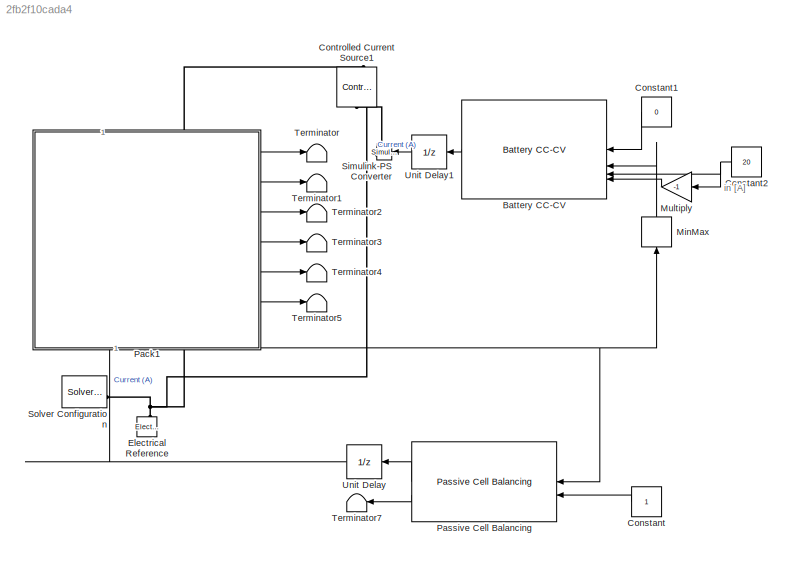
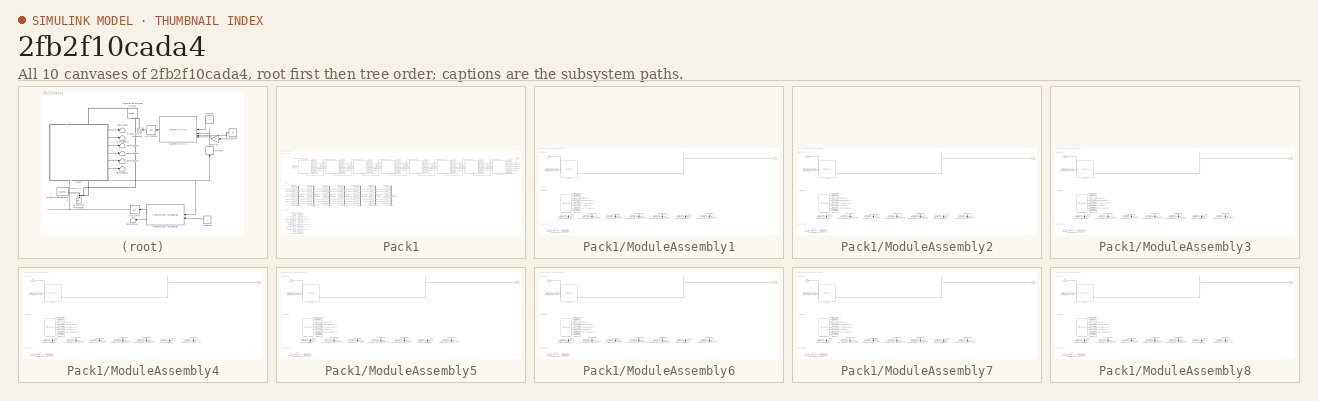
[diagram: thumbnail index - all 10 canvases of the model, root first then tree order]
MODEL slx_2fb2f10cada4
KIND model
CONFIG AbsTol = auto
CONFIG EnableMultiTasking = off
CONFIG FixedStep = auto
CONFIG MaxStep = auto
CONFIG MinStep = auto
CONFIG RelTol = 1e-3
CONFIG SampleTimeConstraint = Unconstrained
CONFIG SolverName = VariableStepAuto
CONFIG StartTime = 0.0
CONFIG StopTime = 3600
BLOCK [Reference] Battery CC-CV  REF=BatteryCurrentManagement/Battery CC-CV
  LibrarySourceBlock = batt_sl_lib/Current Management/Battery CC-CV
  NameLocation = top
  SourceBlock = BatteryCurrentManagement/Battery CC-CV
  SourceType = Battery CC-CV
BLOCK [Constant] Constant
  NameLocation = top
BLOCK [Constant] Constant1
  NameLocation = top
  Value = 0
BLOCK [Constant] Constant2
  NameLocation = top
  Value = 20
BLOCK [Reference] Controlled Current Source1  REF=fl_lib/Electrical/Electrical Sources/Controlled Current
Source
  NameLocation = right
  SourceBlock = fl_lib/Electrical/Electrical Sources/Controlled Current\nSource
  SourceType = Controlled Current\nSource
BLOCK [Reference] Electrical Reference  REF=fl_lib/Electrical/Electrical Elements/Electrical Reference
  NameLocation = right
  SourceBlock = fl_lib/Electrical/Electrical Elements/Electrical Reference
  SourceType = Electrical Reference
BLOCK [MinMax] MinMax
  Function = max
  NameLocation = right
BLOCK [Gain] Multiply
  Gain = -1
  NameLocation = top
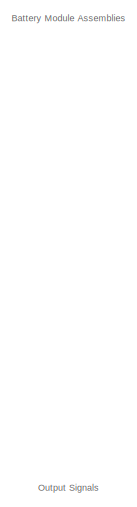
[diagram: Pack1 - part 1/7, top left region]
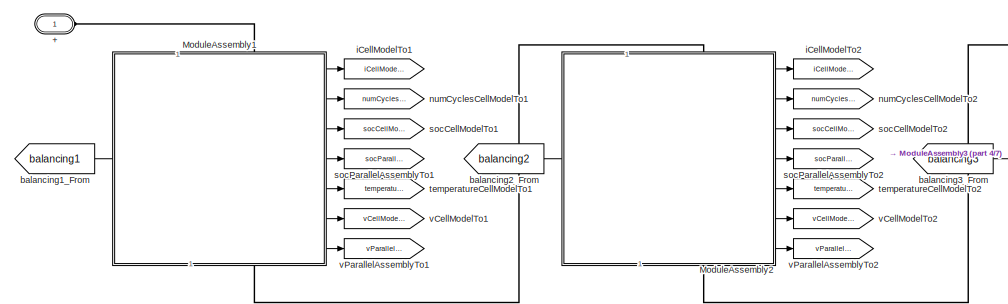
[diagram: Pack1 - part 2/7, top left region]
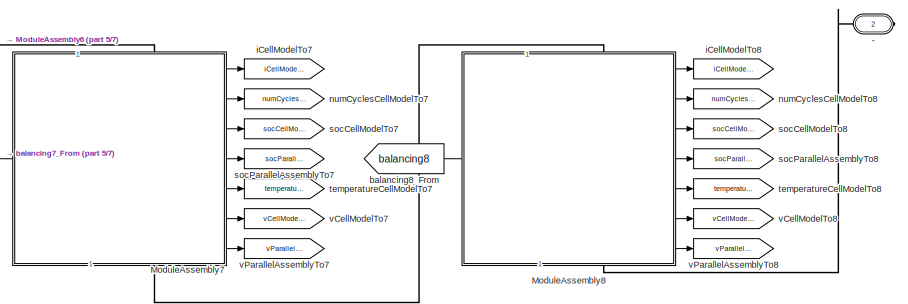
[diagram: Pack1 - part 3/7, top right region]
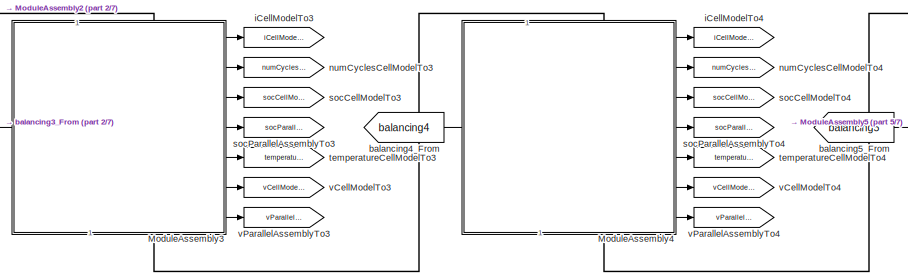
[diagram: Pack1 - part 4/7, top center region]
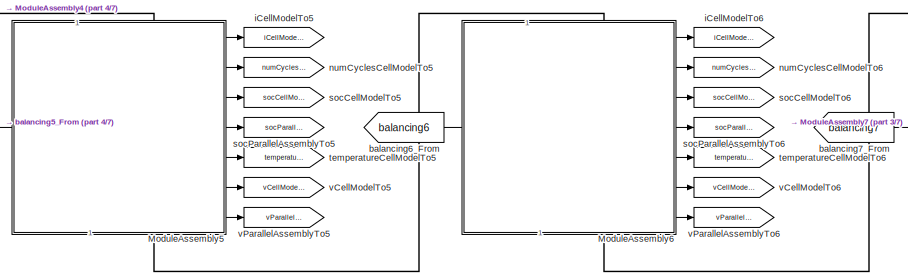
[diagram: Pack1 - part 5/7, top center region]
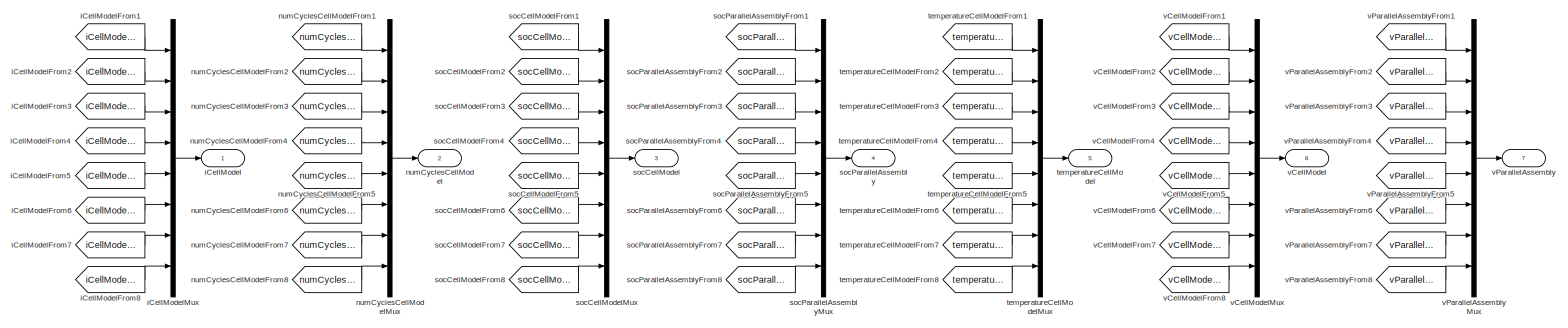
[diagram: Pack1 - part 6/7, middle left region]
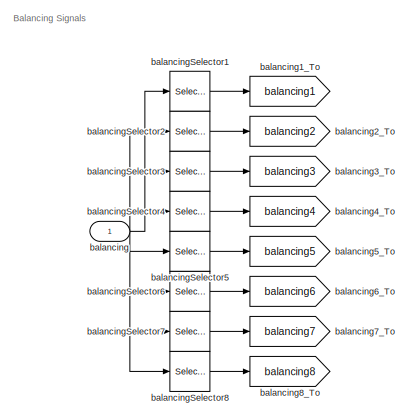
[diagram: Pack1 - part 7/7, bottom left region]
BLOCK [SubSystem] Pack1
  CopyFcn = battery_builder_rtmsupport('copyfcn',gcbh);
  LoadFcn = battery_builder_rtmsupport('loadfcn',gcbh);
  PortSchema = {"entries":[{"content":{"sides":[{"content":{"connectorIds":["LConn1"]},"type":"ConnectorPlacement.EquallySpacedRectSide","uuid":"15f36c34-930d-4f52-9483-b00906672ad1"},{"content":{"connectorIds":["RConn1"],"side":"RIGHT"},"type":"ConnectorPlacement.EquallySpacedRectSide","uuid":"ac97c2df-2435-440c-95b5-222ce8189245"},{"content":{"connectorIds":["In1"],"side":"TOP"},"type":"ConnectorPlacement.Equa...<+442ch>  <repeated x9 — deduplicated; at blocks: Pack1, ModuleAssembly1, ModuleAssembly2, ModuleAssembly3, ModuleAssembly4, ModuleAssembly5, ModuleAssembly6, ModuleAssembly7, ModuleAssembly8>
  PreCopyFcn = battery_builder_rtmsupport('precopyfcn',gcbh);
  PreDeleteFcn = battery_builder_rtmsupport('predeletefcn',gcbh);
BLOCK [PMIOPort] Pack1/+
  Side = Left
BLOCK [PMIOPort] Pack1/-
  Port = 2
  Side = Right
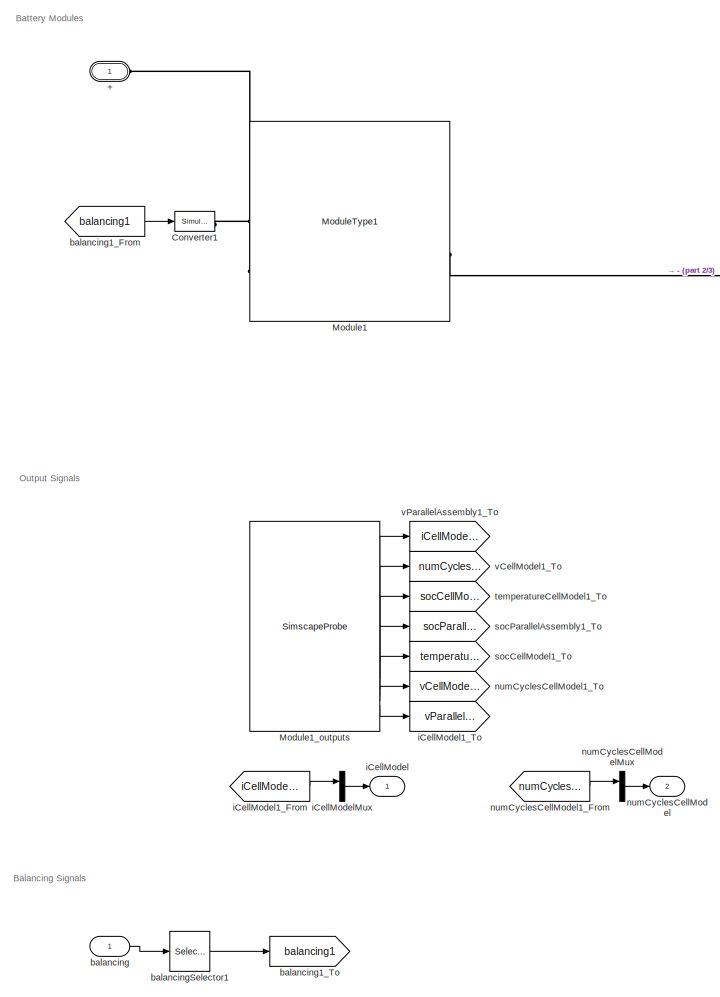
[diagram: Pack1/ModuleAssembly1 - part 1/3, left side, full height]
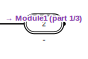
[diagram: Pack1/ModuleAssembly1 - part 2/3, top right region]
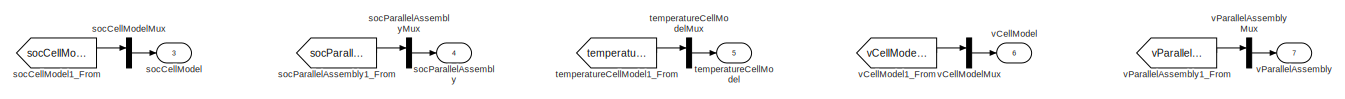
[diagram: Pack1/ModuleAssembly1 - part 3/3, bottom center region]
BLOCK [SubSystem] Pack1/ModuleAssembly1
  CopyFcn = battery_builder_rtmsupport('copyfcn',gcbh);
  LoadFcn = battery_builder_rtmsupport('loadfcn',gcbh);
  PreCopyFcn = battery_builder_rtmsupport('precopyfcn',gcbh);
  PreDeleteFcn = battery_builder_rtmsupport('predeletefcn',gcbh);
BLOCK [PMIOPort] Pack1/ModuleAssembly1/+
  Side = Left
BLOCK [PMIOPort] Pack1/ModuleAssembly1/-
  Port = 2
  Side = Right
BLOCK [Reference] Pack1/ModuleAssembly1/Converter1  REF=nesl_utility/Simulink-PS
Converter
  SourceBlock = nesl_utility/Simulink-PS\nConverter
  SourceType = Simulink-PS\nConverter
BLOCK [Reference] Pack1/ModuleAssembly1/Module1  REF=GD_Batterymodel_lib/Modules/ModuleType1
  SourceBlock = GD_Batterymodel_lib/Modules/ModuleType1
  SourceType = ModuleType1
BLOCK [SimscapeProbe] Pack1/ModuleAssembly1/Module1_outputs
  BoundBlock = 522
  Variables = {iCellModel, numCyclesCellModel, socCellModel, socParallelAssembly, temperatureCellModel, vCellModel, vParallelAssembly}
BLOCK [Inport] Pack1/ModuleAssembly1/balancing
  PortDimensions = 14
BLOCK [From] Pack1/ModuleAssembly1/balancing1_From
  GotoTag = balancing1
BLOCK [Goto] Pack1/ModuleAssembly1/balancing1_To
  GotoTag = balancing1
BLOCK [Selector] Pack1/ModuleAssembly1/balancingSelector1
  IndexOptions = Index vector (dialog)
  Indices = [1   2   3   4   5   6   7   8   9  10  11  12  13  14]
  InputPortWidth = 14
  OutputSizes = 1
BLOCK [Outport] Pack1/ModuleAssembly1/iCellModel
BLOCK [From] Pack1/ModuleAssembly1/iCellModel1_From
  GotoTag = iCellModel1
BLOCK [Goto] Pack1/ModuleAssembly1/iCellModel1_To
  GotoTag = vParallelAssembly1
BLOCK [Mux] Pack1/ModuleAssembly1/iCellModelMux
  DisplayOption = bar
  Inputs = 1
BLOCK [Outport] Pack1/ModuleAssembly1/numCyclesCellModel
  Port = 2
BLOCK [From] Pack1/ModuleAssembly1/numCyclesCellModel1_From
  GotoTag = numCyclesCellModel1
BLOCK [Goto] Pack1/ModuleAssembly1/numCyclesCellModel1_To
  GotoTag = vCellModel1
BLOCK [Mux] Pack1/ModuleAssembly1/numCyclesCellModelMux
  DisplayOption = bar
  Inputs = 1
BLOCK [Outport] Pack1/ModuleAssembly1/socCellModel
  Port = 3
BLOCK [From] Pack1/ModuleAssembly1/socCellModel1_From
  GotoTag = socCellModel1
BLOCK [Goto] Pack1/ModuleAssembly1/socCellModel1_To
  GotoTag = temperatureCellModel1
BLOCK [Mux] Pack1/ModuleAssembly1/socCellModelMux
  DisplayOption = bar
  Inputs = 1
BLOCK [Outport] Pack1/ModuleAssembly1/socParallelAssembly
  Port = 4
BLOCK [From] Pack1/ModuleAssembly1/socParallelAssembly1_From
  GotoTag = socParallelAssembly1
BLOCK [Goto] Pack1/ModuleAssembly1/socParallelAssembly1_To
  GotoTag = socParallelAssembly1
BLOCK [Mux] Pack1/ModuleAssembly1/socParallelAssemblyMux
  DisplayOption = bar
  Inputs = 1
BLOCK [Outport] Pack1/ModuleAssembly1/temperatureCellModel
  Port = 5
BLOCK [From] Pack1/ModuleAssembly1/temperatureCellModel1_From
  GotoTag = temperatureCellModel1
BLOCK [Goto] Pack1/ModuleAssembly1/temperatureCellModel1_To
  GotoTag = socCellModel1
BLOCK [Mux] Pack1/ModuleAssembly1/temperatureCellModelMux
  DisplayOption = bar
  Inputs = 1
BLOCK [Outport] Pack1/ModuleAssembly1/vCellModel
  Port = 6
BLOCK [From] Pack1/ModuleAssembly1/vCellModel1_From
  GotoTag = vCellModel1
BLOCK [Goto] Pack1/ModuleAssembly1/vCellModel1_To
  GotoTag = numCyclesCellModel1
BLOCK [Mux] Pack1/ModuleAssembly1/vCellModelMux
  DisplayOption = bar
  Inputs = 1
BLOCK [Outport] Pack1/ModuleAssembly1/vParallelAssembly
  Port = 7
BLOCK [From] Pack1/ModuleAssembly1/vParallelAssembly1_From
  GotoTag = vParallelAssembly1
BLOCK [Goto] Pack1/ModuleAssembly1/vParallelAssembly1_To
  GotoTag = iCellModel1
BLOCK [Mux] Pack1/ModuleAssembly1/vParallelAssemblyMux
  DisplayOption = bar
  Inputs = 1
BLOCK [SubSystem] Pack1/ModuleAssembly2
  CopyFcn = battery_builder_rtmsupport('copyfcn',gcbh);
  LoadFcn = battery_builder_rtmsupport('loadfcn',gcbh);
  PreCopyFcn = battery_builder_rtmsupport('precopyfcn',gcbh);
  PreDeleteFcn = battery_builder_rtmsupport('predeletefcn',gcbh);
BLOCK [PMIOPort] Pack1/ModuleAssembly2/+
  Side = Left
BLOCK [PMIOPort] Pack1/ModuleAssembly2/-
  Port = 2
  Side = Right
BLOCK [Reference] Pack1/ModuleAssembly2/Converter1  REF=nesl_utility/Simulink-PS
Converter
  SourceBlock = nesl_utility/Simulink-PS\nConverter
  SourceType = Simulink-PS\nConverter
BLOCK [Reference] Pack1/ModuleAssembly2/Module1  REF=GD_Batterymodel_lib/Modules/ModuleType1
  SourceBlock = GD_Batterymodel_lib/Modules/ModuleType1
  SourceType = ModuleType1
BLOCK [SimscapeProbe] Pack1/ModuleAssembly2/Module1_outputs
  BoundBlock = 563
  Variables = {iCellModel, numCyclesCellModel, socCellModel, socParallelAssembly, temperatureCellModel, vCellModel, vParallelAssembly}
BLOCK [Inport] Pack1/ModuleAssembly2/balancing
  PortDimensions = 14
BLOCK [From] Pack1/ModuleAssembly2/balancing1_From
  GotoTag = balancing1
BLOCK [Goto] Pack1/ModuleAssembly2/balancing1_To
  GotoTag = balancing1
BLOCK [Selector] Pack1/ModuleAssembly2/balancingSelector1
  IndexOptions = Index vector (dialog)
  Indices = [1   2   3   4   5   6   7   8   9  10  11  12  13  14]
  InputPortWidth = 14
  OutputSizes = 1
BLOCK [Outport] Pack1/ModuleAssembly2/iCellModel
BLOCK [From] Pack1/ModuleAssembly2/iCellModel1_From
  GotoTag = iCellModel1
BLOCK [Goto] Pack1/ModuleAssembly2/iCellModel1_To
  GotoTag = vParallelAssembly1
BLOCK [Mux] Pack1/ModuleAssembly2/iCellModelMux
  DisplayOption = bar
  Inputs = 1
BLOCK [Outport] Pack1/ModuleAssembly2/numCyclesCellModel
  Port = 2
BLOCK [From] Pack1/ModuleAssembly2/numCyclesCellModel1_From
  GotoTag = numCyclesCellModel1
BLOCK [Goto] Pack1/ModuleAssembly2/numCyclesCellModel1_To
  GotoTag = vCellModel1
BLOCK [Mux] Pack1/ModuleAssembly2/numCyclesCellModelMux
  DisplayOption = bar
  Inputs = 1
BLOCK [Outport] Pack1/ModuleAssembly2/socCellModel
  Port = 3
BLOCK [From] Pack1/ModuleAssembly2/socCellModel1_From
  GotoTag = socCellModel1
BLOCK [Goto] Pack1/ModuleAssembly2/socCellModel1_To
  GotoTag = temperatureCellModel1
BLOCK [Mux] Pack1/ModuleAssembly2/socCellModelMux
  DisplayOption = bar
  Inputs = 1
BLOCK [Outport] Pack1/ModuleAssembly2/socParallelAssembly
  Port = 4
BLOCK [From] Pack1/ModuleAssembly2/socParallelAssembly1_From
  GotoTag = socParallelAssembly1
BLOCK [Goto] Pack1/ModuleAssembly2/socParallelAssembly1_To
  GotoTag = socParallelAssembly1
BLOCK [Mux] Pack1/ModuleAssembly2/socParallelAssemblyMux
  DisplayOption = bar
  Inputs = 1
BLOCK [Outport] Pack1/ModuleAssembly2/temperatureCellModel
  Port = 5
BLOCK [From] Pack1/ModuleAssembly2/temperatureCellModel1_From
  GotoTag = temperatureCellModel1
BLOCK [Goto] Pack1/ModuleAssembly2/temperatureCellModel1_To
  GotoTag = socCellModel1
BLOCK [Mux] Pack1/ModuleAssembly2/temperatureCellModelMux
  DisplayOption = bar
  Inputs = 1
BLOCK [Outport] Pack1/ModuleAssembly2/vCellModel
  Port = 6
BLOCK [From] Pack1/ModuleAssembly2/vCellModel1_From
  GotoTag = vCellModel1
BLOCK [Goto] Pack1/ModuleAssembly2/vCellModel1_To
  GotoTag = numCyclesCellModel1
BLOCK [Mux] Pack1/ModuleAssembly2/vCellModelMux
  DisplayOption = bar
  Inputs = 1
BLOCK [Outport] Pack1/ModuleAssembly2/vParallelAssembly
  Port = 7
BLOCK [From] Pack1/ModuleAssembly2/vParallelAssembly1_From
  GotoTag = vParallelAssembly1
BLOCK [Goto] Pack1/ModuleAssembly2/vParallelAssembly1_To
  GotoTag = iCellModel1
BLOCK [Mux] Pack1/ModuleAssembly2/vParallelAssemblyMux
  DisplayOption = bar
  Inputs = 1
BLOCK [SubSystem] Pack1/ModuleAssembly3
  CopyFcn = battery_builder_rtmsupport('copyfcn',gcbh);
  LoadFcn = battery_builder_rtmsupport('loadfcn',gcbh);
  PreCopyFcn = battery_builder_rtmsupport('precopyfcn',gcbh);
  PreDeleteFcn = battery_builder_rtmsupport('predeletefcn',gcbh);
BLOCK [PMIOPort] Pack1/ModuleAssembly3/+
  Side = Left
BLOCK [PMIOPort] Pack1/ModuleAssembly3/-
  Port = 2
  Side = Right
BLOCK [Reference] Pack1/ModuleAssembly3/Converter1  REF=nesl_utility/Simulink-PS
Converter
  SourceBlock = nesl_utility/Simulink-PS\nConverter
  SourceType = Simulink-PS\nConverter
BLOCK [Reference] Pack1/ModuleAssembly3/Module1  REF=GD_Batterymodel_lib/Modules/ModuleType1
  SourceBlock = GD_Batterymodel_lib/Modules/ModuleType1
  SourceType = ModuleType1
BLOCK [SimscapeProbe] Pack1/ModuleAssembly3/Module1_outputs
  BoundBlock = 604
  Variables = {iCellModel, numCyclesCellModel, socCellModel, socParallelAssembly, temperatureCellModel, vCellModel, vParallelAssembly}
BLOCK [Inport] Pack1/ModuleAssembly3/balancing
  PortDimensions = 14
BLOCK [From] Pack1/ModuleAssembly3/balancing1_From
  GotoTag = balancing1
BLOCK [Goto] Pack1/ModuleAssembly3/balancing1_To
  GotoTag = balancing1
BLOCK [Selector] Pack1/ModuleAssembly3/balancingSelector1
  IndexOptions = Index vector (dialog)
  Indices = [1   2   3   4   5   6   7   8   9  10  11  12  13  14]
  InputPortWidth = 14
  OutputSizes = 1
BLOCK [Outport] Pack1/ModuleAssembly3/iCellModel
BLOCK [From] Pack1/ModuleAssembly3/iCellModel1_From
  GotoTag = iCellModel1
BLOCK [Goto] Pack1/ModuleAssembly3/iCellModel1_To
  GotoTag = vParallelAssembly1
BLOCK [Mux] Pack1/ModuleAssembly3/iCellModelMux
  DisplayOption = bar
  Inputs = 1
BLOCK [Outport] Pack1/ModuleAssembly3/numCyclesCellModel
  Port = 2
BLOCK [From] Pack1/ModuleAssembly3/numCyclesCellModel1_From
  GotoTag = numCyclesCellModel1
BLOCK [Goto] Pack1/ModuleAssembly3/numCyclesCellModel1_To
  GotoTag = vCellModel1
BLOCK [Mux] Pack1/ModuleAssembly3/numCyclesCellModelMux
  DisplayOption = bar
  Inputs = 1
BLOCK [Outport] Pack1/ModuleAssembly3/socCellModel
  Port = 3
BLOCK [From] Pack1/ModuleAssembly3/socCellModel1_From
  GotoTag = socCellModel1
BLOCK [Goto] Pack1/ModuleAssembly3/socCellModel1_To
  GotoTag = temperatureCellModel1
BLOCK [Mux] Pack1/ModuleAssembly3/socCellModelMux
  DisplayOption = bar
  Inputs = 1
BLOCK [Outport] Pack1/ModuleAssembly3/socParallelAssembly
  Port = 4
BLOCK [From] Pack1/ModuleAssembly3/socParallelAssembly1_From
  GotoTag = socParallelAssembly1
BLOCK [Goto] Pack1/ModuleAssembly3/socParallelAssembly1_To
  GotoTag = socParallelAssembly1
BLOCK [Mux] Pack1/ModuleAssembly3/socParallelAssemblyMux
  DisplayOption = bar
  Inputs = 1
BLOCK [Outport] Pack1/ModuleAssembly3/temperatureCellModel
  Port = 5
BLOCK [From] Pack1/ModuleAssembly3/temperatureCellModel1_From
  GotoTag = temperatureCellModel1
BLOCK [Goto] Pack1/ModuleAssembly3/temperatureCellModel1_To
  GotoTag = socCellModel1
BLOCK [Mux] Pack1/ModuleAssembly3/temperatureCellModelMux
  DisplayOption = bar
  Inputs = 1
BLOCK [Outport] Pack1/ModuleAssembly3/vCellModel
  Port = 6
BLOCK [From] Pack1/ModuleAssembly3/vCellModel1_From
  GotoTag = vCellModel1
BLOCK [Goto] Pack1/ModuleAssembly3/vCellModel1_To
  GotoTag = numCyclesCellModel1
BLOCK [Mux] Pack1/ModuleAssembly3/vCellModelMux
  DisplayOption = bar
  Inputs = 1
BLOCK [Outport] Pack1/ModuleAssembly3/vParallelAssembly
  Port = 7
BLOCK [From] Pack1/ModuleAssembly3/vParallelAssembly1_From
  GotoTag = vParallelAssembly1
BLOCK [Goto] Pack1/ModuleAssembly3/vParallelAssembly1_To
  GotoTag = iCellModel1
BLOCK [Mux] Pack1/ModuleAssembly3/vParallelAssemblyMux
  DisplayOption = bar
  Inputs = 1
BLOCK [SubSystem] Pack1/ModuleAssembly4
  CopyFcn = battery_builder_rtmsupport('copyfcn',gcbh);
  LoadFcn = battery_builder_rtmsupport('loadfcn',gcbh);
  PreCopyFcn = battery_builder_rtmsupport('precopyfcn',gcbh);
  PreDeleteFcn = battery_builder_rtmsupport('predeletefcn',gcbh);
BLOCK [PMIOPort] Pack1/ModuleAssembly4/+
  Side = Left
BLOCK [PMIOPort] Pack1/ModuleAssembly4/-
  Port = 2
  Side = Right
BLOCK [Reference] Pack1/ModuleAssembly4/Converter1  REF=nesl_utility/Simulink-PS
Converter
  SourceBlock = nesl_utility/Simulink-PS\nConverter
  SourceType = Simulink-PS\nConverter
BLOCK [Reference] Pack1/ModuleAssembly4/Module1  REF=GD_Batterymodel_lib/Modules/ModuleType1
  SourceBlock = GD_Batterymodel_lib/Modules/ModuleType1
  SourceType = ModuleType1
BLOCK [SimscapeProbe] Pack1/ModuleAssembly4/Module1_outputs
  BoundBlock = 645
  Variables = {iCellModel, numCyclesCellModel, socCellModel, socParallelAssembly, temperatureCellModel, vCellModel, vParallelAssembly}
BLOCK [Inport] Pack1/ModuleAssembly4/balancing
  PortDimensions = 14
BLOCK [From] Pack1/ModuleAssembly4/balancing1_From
  GotoTag = balancing1
BLOCK [Goto] Pack1/ModuleAssembly4/balancing1_To
  GotoTag = balancing1
BLOCK [Selector] Pack1/ModuleAssembly4/balancingSelector1
  IndexOptions = Index vector (dialog)
  Indices = [1   2   3   4   5   6   7   8   9  10  11  12  13  14]
  InputPortWidth = 14
  OutputSizes = 1
BLOCK [Outport] Pack1/ModuleAssembly4/iCellModel
BLOCK [From] Pack1/ModuleAssembly4/iCellModel1_From
  GotoTag = iCellModel1
BLOCK [Goto] Pack1/ModuleAssembly4/iCellModel1_To
  GotoTag = vParallelAssembly1
BLOCK [Mux] Pack1/ModuleAssembly4/iCellModelMux
  DisplayOption = bar
  Inputs = 1
BLOCK [Outport] Pack1/ModuleAssembly4/numCyclesCellModel
  Port = 2
BLOCK [From] Pack1/ModuleAssembly4/numCyclesCellModel1_From
  GotoTag = numCyclesCellModel1
BLOCK [Goto] Pack1/ModuleAssembly4/numCyclesCellModel1_To
  GotoTag = vCellModel1
BLOCK [Mux] Pack1/ModuleAssembly4/numCyclesCellModelMux
  DisplayOption = bar
  Inputs = 1
BLOCK [Outport] Pack1/ModuleAssembly4/socCellModel
  Port = 3
BLOCK [From] Pack1/ModuleAssembly4/socCellModel1_From
  GotoTag = socCellModel1
BLOCK [Goto] Pack1/ModuleAssembly4/socCellModel1_To
  GotoTag = temperatureCellModel1
BLOCK [Mux] Pack1/ModuleAssembly4/socCellModelMux
  DisplayOption = bar
  Inputs = 1
BLOCK [Outport] Pack1/ModuleAssembly4/socParallelAssembly
  Port = 4
BLOCK [From] Pack1/ModuleAssembly4/socParallelAssembly1_From
  GotoTag = socParallelAssembly1
BLOCK [Goto] Pack1/ModuleAssembly4/socParallelAssembly1_To
  GotoTag = socParallelAssembly1
BLOCK [Mux] Pack1/ModuleAssembly4/socParallelAssemblyMux
  DisplayOption = bar
  Inputs = 1
BLOCK [Outport] Pack1/ModuleAssembly4/temperatureCellModel
  Port = 5
BLOCK [From] Pack1/ModuleAssembly4/temperatureCellModel1_From
  GotoTag = temperatureCellModel1
BLOCK [Goto] Pack1/ModuleAssembly4/temperatureCellModel1_To
  GotoTag = socCellModel1
BLOCK [Mux] Pack1/ModuleAssembly4/temperatureCellModelMux
  DisplayOption = bar
  Inputs = 1
BLOCK [Outport] Pack1/ModuleAssembly4/vCellModel
  Port = 6
BLOCK [From] Pack1/ModuleAssembly4/vCellModel1_From
  GotoTag = vCellModel1
BLOCK [Goto] Pack1/ModuleAssembly4/vCellModel1_To
  GotoTag = numCyclesCellModel1
BLOCK [Mux] Pack1/ModuleAssembly4/vCellModelMux
  DisplayOption = bar
  Inputs = 1
BLOCK [Outport] Pack1/ModuleAssembly4/vParallelAssembly
  Port = 7
BLOCK [From] Pack1/ModuleAssembly4/vParallelAssembly1_From
  GotoTag = vParallelAssembly1
BLOCK [Goto] Pack1/ModuleAssembly4/vParallelAssembly1_To
  GotoTag = iCellModel1
BLOCK [Mux] Pack1/ModuleAssembly4/vParallelAssemblyMux
  DisplayOption = bar
  Inputs = 1
BLOCK [SubSystem] Pack1/ModuleAssembly5
  CopyFcn = battery_builder_rtmsupport('copyfcn',gcbh);
  LoadFcn = battery_builder_rtmsupport('loadfcn',gcbh);
  PreCopyFcn = battery_builder_rtmsupport('precopyfcn',gcbh);
  PreDeleteFcn = battery_builder_rtmsupport('predeletefcn',gcbh);
BLOCK [PMIOPort] Pack1/ModuleAssembly5/+
  Side = Left
BLOCK [PMIOPort] Pack1/ModuleAssembly5/-
  Port = 2
  Side = Right
BLOCK [Reference] Pack1/ModuleAssembly5/Converter1  REF=nesl_utility/Simulink-PS
Converter
  SourceBlock = nesl_utility/Simulink-PS\nConverter
  SourceType = Simulink-PS\nConverter
BLOCK [Reference] Pack1/ModuleAssembly5/Module1  REF=GD_Batterymodel_lib/Modules/ModuleType1
  SourceBlock = GD_Batterymodel_lib/Modules/ModuleType1
  SourceType = ModuleType1
BLOCK [SimscapeProbe] Pack1/ModuleAssembly5/Module1_outputs
  BoundBlock = 686
  Variables = {iCellModel, numCyclesCellModel, socCellModel, socParallelAssembly, temperatureCellModel, vCellModel, vParallelAssembly}
BLOCK [Inport] Pack1/ModuleAssembly5/balancing
  PortDimensions = 14
BLOCK [From] Pack1/ModuleAssembly5/balancing1_From
  GotoTag = balancing1
BLOCK [Goto] Pack1/ModuleAssembly5/balancing1_To
  GotoTag = balancing1
BLOCK [Selector] Pack1/ModuleAssembly5/balancingSelector1
  IndexOptions = Index vector (dialog)
  Indices = [1   2   3   4   5   6   7   8   9  10  11  12  13  14]
  InputPortWidth = 14
  OutputSizes = 1
BLOCK [Outport] Pack1/ModuleAssembly5/iCellModel
BLOCK [From] Pack1/ModuleAssembly5/iCellModel1_From
  GotoTag = iCellModel1
BLOCK [Goto] Pack1/ModuleAssembly5/iCellModel1_To
  GotoTag = vParallelAssembly1
BLOCK [Mux] Pack1/ModuleAssembly5/iCellModelMux
  DisplayOption = bar
  Inputs = 1
BLOCK [Outport] Pack1/ModuleAssembly5/numCyclesCellModel
  Port = 2
BLOCK [From] Pack1/ModuleAssembly5/numCyclesCellModel1_From
  GotoTag = numCyclesCellModel1
BLOCK [Goto] Pack1/ModuleAssembly5/numCyclesCellModel1_To
  GotoTag = vCellModel1
BLOCK [Mux] Pack1/ModuleAssembly5/numCyclesCellModelMux
  DisplayOption = bar
  Inputs = 1
BLOCK [Outport] Pack1/ModuleAssembly5/socCellModel
  Port = 3
BLOCK [From] Pack1/ModuleAssembly5/socCellModel1_From
  GotoTag = socCellModel1
BLOCK [Goto] Pack1/ModuleAssembly5/socCellModel1_To
  GotoTag = temperatureCellModel1
BLOCK [Mux] Pack1/ModuleAssembly5/socCellModelMux
  DisplayOption = bar
  Inputs = 1
BLOCK [Outport] Pack1/ModuleAssembly5/socParallelAssembly
  Port = 4
BLOCK [From] Pack1/ModuleAssembly5/socParallelAssembly1_From
  GotoTag = socParallelAssembly1
BLOCK [Goto] Pack1/ModuleAssembly5/socParallelAssembly1_To
  GotoTag = socParallelAssembly1
BLOCK [Mux] Pack1/ModuleAssembly5/socParallelAssemblyMux
  DisplayOption = bar
  Inputs = 1
BLOCK [Outport] Pack1/ModuleAssembly5/temperatureCellModel
  Port = 5
BLOCK [From] Pack1/ModuleAssembly5/temperatureCellModel1_From
  GotoTag = temperatureCellModel1
BLOCK [Goto] Pack1/ModuleAssembly5/temperatureCellModel1_To
  GotoTag = socCellModel1
BLOCK [Mux] Pack1/ModuleAssembly5/temperatureCellModelMux
  DisplayOption = bar
  Inputs = 1
BLOCK [Outport] Pack1/ModuleAssembly5/vCellModel
  Port = 6
BLOCK [From] Pack1/ModuleAssembly5/vCellModel1_From
  GotoTag = vCellModel1
BLOCK [Goto] Pack1/ModuleAssembly5/vCellModel1_To
  GotoTag = numCyclesCellModel1
BLOCK [Mux] Pack1/ModuleAssembly5/vCellModelMux
  DisplayOption = bar
  Inputs = 1
BLOCK [Outport] Pack1/ModuleAssembly5/vParallelAssembly
  Port = 7
BLOCK [From] Pack1/ModuleAssembly5/vParallelAssembly1_From
  GotoTag = vParallelAssembly1
BLOCK [Goto] Pack1/ModuleAssembly5/vParallelAssembly1_To
  GotoTag = iCellModel1
BLOCK [Mux] Pack1/ModuleAssembly5/vParallelAssemblyMux
  DisplayOption = bar
  Inputs = 1
BLOCK [SubSystem] Pack1/ModuleAssembly6
  CopyFcn = battery_builder_rtmsupport('copyfcn',gcbh);
  LoadFcn = battery_builder_rtmsupport('loadfcn',gcbh);
  PreCopyFcn = battery_builder_rtmsupport('precopyfcn',gcbh);
  PreDeleteFcn = battery_builder_rtmsupport('predeletefcn',gcbh);
BLOCK [PMIOPort] Pack1/ModuleAssembly6/+
  Side = Left
BLOCK [PMIOPort] Pack1/ModuleAssembly6/-
  Port = 2
  Side = Right
BLOCK [Reference] Pack1/ModuleAssembly6/Converter1  REF=nesl_utility/Simulink-PS
Converter
  SourceBlock = nesl_utility/Simulink-PS\nConverter
  SourceType = Simulink-PS\nConverter
BLOCK [Reference] Pack1/ModuleAssembly6/Module1  REF=GD_Batterymodel_lib/Modules/ModuleType1
  SourceBlock = GD_Batterymodel_lib/Modules/ModuleType1
  SourceType = ModuleType1
BLOCK [SimscapeProbe] Pack1/ModuleAssembly6/Module1_outputs
  BoundBlock = 727
  Variables = {iCellModel, numCyclesCellModel, socCellModel, socParallelAssembly, temperatureCellModel, vCellModel, vParallelAssembly}
BLOCK [Inport] Pack1/ModuleAssembly6/balancing
  PortDimensions = 14
BLOCK [From] Pack1/ModuleAssembly6/balancing1_From
  GotoTag = balancing1
BLOCK [Goto] Pack1/ModuleAssembly6/balancing1_To
  GotoTag = balancing1
BLOCK [Selector] Pack1/ModuleAssembly6/balancingSelector1
  IndexOptions = Index vector (dialog)
  Indices = [1   2   3   4   5   6   7   8   9  10  11  12  13  14]
  InputPortWidth = 14
  OutputSizes = 1
BLOCK [Outport] Pack1/ModuleAssembly6/iCellModel
BLOCK [From] Pack1/ModuleAssembly6/iCellModel1_From
  GotoTag = iCellModel1
BLOCK [Goto] Pack1/ModuleAssembly6/iCellModel1_To
  GotoTag = vParallelAssembly1
BLOCK [Mux] Pack1/ModuleAssembly6/iCellModelMux
  DisplayOption = bar
  Inputs = 1
BLOCK [Outport] Pack1/ModuleAssembly6/numCyclesCellModel
  Port = 2
BLOCK [From] Pack1/ModuleAssembly6/numCyclesCellModel1_From
  GotoTag = numCyclesCellModel1
BLOCK [Goto] Pack1/ModuleAssembly6/numCyclesCellModel1_To
  GotoTag = vCellModel1
BLOCK [Mux] Pack1/ModuleAssembly6/numCyclesCellModelMux
  DisplayOption = bar
  Inputs = 1
BLOCK [Outport] Pack1/ModuleAssembly6/socCellModel
  Port = 3
BLOCK [From] Pack1/ModuleAssembly6/socCellModel1_From
  GotoTag = socCellModel1
BLOCK [Goto] Pack1/ModuleAssembly6/socCellModel1_To
  GotoTag = temperatureCellModel1
BLOCK [Mux] Pack1/ModuleAssembly6/socCellModelMux
  DisplayOption = bar
  Inputs = 1
BLOCK [Outport] Pack1/ModuleAssembly6/socParallelAssembly
  Port = 4
BLOCK [From] Pack1/ModuleAssembly6/socParallelAssembly1_From
  GotoTag = socParallelAssembly1
BLOCK [Goto] Pack1/ModuleAssembly6/socParallelAssembly1_To
  GotoTag = socParallelAssembly1
BLOCK [Mux] Pack1/ModuleAssembly6/socParallelAssemblyMux
  DisplayOption = bar
  Inputs = 1
BLOCK [Outport] Pack1/ModuleAssembly6/temperatureCellModel
  Port = 5
BLOCK [From] Pack1/ModuleAssembly6/temperatureCellModel1_From
  GotoTag = temperatureCellModel1
BLOCK [Goto] Pack1/ModuleAssembly6/temperatureCellModel1_To
  GotoTag = socCellModel1
BLOCK [Mux] Pack1/ModuleAssembly6/temperatureCellModelMux
  DisplayOption = bar
  Inputs = 1
BLOCK [Outport] Pack1/ModuleAssembly6/vCellModel
  Port = 6
BLOCK [From] Pack1/ModuleAssembly6/vCellModel1_From
  GotoTag = vCellModel1
BLOCK [Goto] Pack1/ModuleAssembly6/vCellModel1_To
  GotoTag = numCyclesCellModel1
BLOCK [Mux] Pack1/ModuleAssembly6/vCellModelMux
  DisplayOption = bar
  Inputs = 1
BLOCK [Outport] Pack1/ModuleAssembly6/vParallelAssembly
  Port = 7
BLOCK [From] Pack1/ModuleAssembly6/vParallelAssembly1_From
  GotoTag = vParallelAssembly1
BLOCK [Goto] Pack1/ModuleAssembly6/vParallelAssembly1_To
  GotoTag = iCellModel1
BLOCK [Mux] Pack1/ModuleAssembly6/vParallelAssemblyMux
  DisplayOption = bar
  Inputs = 1
BLOCK [SubSystem] Pack1/ModuleAssembly7
  CopyFcn = battery_builder_rtmsupport('copyfcn',gcbh);
  LoadFcn = battery_builder_rtmsupport('loadfcn',gcbh);
  PreCopyFcn = battery_builder_rtmsupport('precopyfcn',gcbh);
  PreDeleteFcn = battery_builder_rtmsupport('predeletefcn',gcbh);
BLOCK [PMIOPort] Pack1/ModuleAssembly7/+
  Side = Left
BLOCK [PMIOPort] Pack1/ModuleAssembly7/-
  Port = 2
  Side = Right
BLOCK [Reference] Pack1/ModuleAssembly7/Converter1  REF=nesl_utility/Simulink-PS
Converter
  SourceBlock = nesl_utility/Simulink-PS\nConverter
  SourceType = Simulink-PS\nConverter
BLOCK [Reference] Pack1/ModuleAssembly7/Module1  REF=GD_Batterymodel_lib/Modules/ModuleType1
  SourceBlock = GD_Batterymodel_lib/Modules/ModuleType1
  SourceType = ModuleType1
BLOCK [SimscapeProbe] Pack1/ModuleAssembly7/Module1_outputs
  BoundBlock = 768
  Variables = {iCellModel, numCyclesCellModel, socCellModel, socParallelAssembly, temperatureCellModel, vCellModel, vParallelAssembly}
BLOCK [Inport] Pack1/ModuleAssembly7/balancing
  PortDimensions = 14
BLOCK [From] Pack1/ModuleAssembly7/balancing1_From
  GotoTag = balancing1
BLOCK [Goto] Pack1/ModuleAssembly7/balancing1_To
  GotoTag = balancing1
BLOCK [Selector] Pack1/ModuleAssembly7/balancingSelector1
  IndexOptions = Index vector (dialog)
  Indices = [1   2   3   4   5   6   7   8   9  10  11  12  13  14]
  InputPortWidth = 14
  OutputSizes = 1
BLOCK [Outport] Pack1/ModuleAssembly7/iCellModel
BLOCK [From] Pack1/ModuleAssembly7/iCellModel1_From
  GotoTag = iCellModel1
BLOCK [Goto] Pack1/ModuleAssembly7/iCellModel1_To
  GotoTag = vParallelAssembly1
BLOCK [Mux] Pack1/ModuleAssembly7/iCellModelMux
  DisplayOption = bar
  Inputs = 1
BLOCK [Outport] Pack1/ModuleAssembly7/numCyclesCellModel
  Port = 2
BLOCK [From] Pack1/ModuleAssembly7/numCyclesCellModel1_From
  GotoTag = numCyclesCellModel1
BLOCK [Goto] Pack1/ModuleAssembly7/numCyclesCellModel1_To
  GotoTag = vCellModel1
BLOCK [Mux] Pack1/ModuleAssembly7/numCyclesCellModelMux
  DisplayOption = bar
  Inputs = 1
BLOCK [Outport] Pack1/ModuleAssembly7/socCellModel
  Port = 3
BLOCK [From] Pack1/ModuleAssembly7/socCellModel1_From
  GotoTag = socCellModel1
BLOCK [Goto] Pack1/ModuleAssembly7/socCellModel1_To
  GotoTag = temperatureCellModel1
BLOCK [Mux] Pack1/ModuleAssembly7/socCellModelMux
  DisplayOption = bar
  Inputs = 1
BLOCK [Outport] Pack1/ModuleAssembly7/socParallelAssembly
  Port = 4
BLOCK [From] Pack1/ModuleAssembly7/socParallelAssembly1_From
  GotoTag = socParallelAssembly1
BLOCK [Goto] Pack1/ModuleAssembly7/socParallelAssembly1_To
  GotoTag = socParallelAssembly1
BLOCK [Mux] Pack1/ModuleAssembly7/socParallelAssemblyMux
  DisplayOption = bar
  Inputs = 1
BLOCK [Outport] Pack1/ModuleAssembly7/temperatureCellModel
  Port = 5
BLOCK [From] Pack1/ModuleAssembly7/temperatureCellModel1_From
  GotoTag = temperatureCellModel1
BLOCK [Goto] Pack1/ModuleAssembly7/temperatureCellModel1_To
  GotoTag = socCellModel1
BLOCK [Mux] Pack1/ModuleAssembly7/temperatureCellModelMux
  DisplayOption = bar
  Inputs = 1
BLOCK [Outport] Pack1/ModuleAssembly7/vCellModel
  Port = 6
BLOCK [From] Pack1/ModuleAssembly7/vCellModel1_From
  GotoTag = vCellModel1
BLOCK [Goto] Pack1/ModuleAssembly7/vCellModel1_To
  GotoTag = numCyclesCellModel1
BLOCK [Mux] Pack1/ModuleAssembly7/vCellModelMux
  DisplayOption = bar
  Inputs = 1
BLOCK [Outport] Pack1/ModuleAssembly7/vParallelAssembly
  Port = 7
BLOCK [From] Pack1/ModuleAssembly7/vParallelAssembly1_From
  GotoTag = vParallelAssembly1
BLOCK [Goto] Pack1/ModuleAssembly7/vParallelAssembly1_To
  GotoTag = iCellModel1
BLOCK [Mux] Pack1/ModuleAssembly7/vParallelAssemblyMux
  DisplayOption = bar
  Inputs = 1
BLOCK [SubSystem] Pack1/ModuleAssembly8
  CopyFcn = battery_builder_rtmsupport('copyfcn',gcbh);
  LoadFcn = battery_builder_rtmsupport('loadfcn',gcbh);
  PreCopyFcn = battery_builder_rtmsupport('precopyfcn',gcbh);
  PreDeleteFcn = battery_builder_rtmsupport('predeletefcn',gcbh);
BLOCK [PMIOPort] Pack1/ModuleAssembly8/+
  Side = Left
BLOCK [PMIOPort] Pack1/ModuleAssembly8/-
  Port = 2
  Side = Right
BLOCK [Reference] Pack1/ModuleAssembly8/Converter1  REF=nesl_utility/Simulink-PS
Converter
  SourceBlock = nesl_utility/Simulink-PS\nConverter
  SourceType = Simulink-PS\nConverter
BLOCK [Reference] Pack1/ModuleAssembly8/Module1  REF=GD_Batterymodel_lib/Modules/ModuleType1
  SourceBlock = GD_Batterymodel_lib/Modules/ModuleType1
  SourceType = ModuleType1
BLOCK [SimscapeProbe] Pack1/ModuleAssembly8/Module1_outputs
  BoundBlock = 809
  Variables = {iCellModel, numCyclesCellModel, socCellModel, socParallelAssembly, temperatureCellModel, vCellModel, vParallelAssembly}
BLOCK [Inport] Pack1/ModuleAssembly8/balancing
  PortDimensions = 14
BLOCK [From] Pack1/ModuleAssembly8/balancing1_From
  GotoTag = balancing1
BLOCK [Goto] Pack1/ModuleAssembly8/balancing1_To
  GotoTag = balancing1
BLOCK [Selector] Pack1/ModuleAssembly8/balancingSelector1
  IndexOptions = Index vector (dialog)
  Indices = [1   2   3   4   5   6   7   8   9  10  11  12  13  14]
  InputPortWidth = 14
  OutputSizes = 1
BLOCK [Outport] Pack1/ModuleAssembly8/iCellModel
BLOCK [From] Pack1/ModuleAssembly8/iCellModel1_From
  GotoTag = iCellModel1
BLOCK [Goto] Pack1/ModuleAssembly8/iCellModel1_To
  GotoTag = vParallelAssembly1
BLOCK [Mux] Pack1/ModuleAssembly8/iCellModelMux
  DisplayOption = bar
  Inputs = 1
BLOCK [Outport] Pack1/ModuleAssembly8/numCyclesCellModel
  Port = 2
BLOCK [From] Pack1/ModuleAssembly8/numCyclesCellModel1_From
  GotoTag = numCyclesCellModel1
BLOCK [Goto] Pack1/ModuleAssembly8/numCyclesCellModel1_To
  GotoTag = vCellModel1
BLOCK [Mux] Pack1/ModuleAssembly8/numCyclesCellModelMux
  DisplayOption = bar
  Inputs = 1
BLOCK [Outport] Pack1/ModuleAssembly8/socCellModel
  Port = 3
BLOCK [From] Pack1/ModuleAssembly8/socCellModel1_From
  GotoTag = socCellModel1
BLOCK [Goto] Pack1/ModuleAssembly8/socCellModel1_To
  GotoTag = temperatureCellModel1
BLOCK [Mux] Pack1/ModuleAssembly8/socCellModelMux
  DisplayOption = bar
  Inputs = 1
BLOCK [Outport] Pack1/ModuleAssembly8/socParallelAssembly
  Port = 4
BLOCK [From] Pack1/ModuleAssembly8/socParallelAssembly1_From
  GotoTag = socParallelAssembly1
BLOCK [Goto] Pack1/ModuleAssembly8/socParallelAssembly1_To
  GotoTag = socParallelAssembly1
BLOCK [Mux] Pack1/ModuleAssembly8/socParallelAssemblyMux
  DisplayOption = bar
  Inputs = 1
BLOCK [Outport] Pack1/ModuleAssembly8/temperatureCellModel
  Port = 5
BLOCK [From] Pack1/ModuleAssembly8/temperatureCellModel1_From
  GotoTag = temperatureCellModel1
BLOCK [Goto] Pack1/ModuleAssembly8/temperatureCellModel1_To
  GotoTag = socCellModel1
BLOCK [Mux] Pack1/ModuleAssembly8/temperatureCellModelMux
  DisplayOption = bar
  Inputs = 1
BLOCK [Outport] Pack1/ModuleAssembly8/vCellModel
  Port = 6
BLOCK [From] Pack1/ModuleAssembly8/vCellModel1_From
  GotoTag = vCellModel1
BLOCK [Goto] Pack1/ModuleAssembly8/vCellModel1_To
  GotoTag = numCyclesCellModel1
BLOCK [Mux] Pack1/ModuleAssembly8/vCellModelMux
  DisplayOption = bar
  Inputs = 1
BLOCK [Outport] Pack1/ModuleAssembly8/vParallelAssembly
  Port = 7
BLOCK [From] Pack1/ModuleAssembly8/vParallelAssembly1_From
  GotoTag = vParallelAssembly1
BLOCK [Goto] Pack1/ModuleAssembly8/vParallelAssembly1_To
  GotoTag = iCellModel1
BLOCK [Mux] Pack1/ModuleAssembly8/vParallelAssemblyMux
  DisplayOption = bar
  Inputs = 1
BLOCK [Inport] Pack1/balancing
  PortDimensions = 112
BLOCK [From] Pack1/balancing1_From
  GotoTag = balancing1
BLOCK [Goto] Pack1/balancing1_To
  GotoTag = balancing1
BLOCK [From] Pack1/balancing2_From
  GotoTag = balancing2
BLOCK [Goto] Pack1/balancing2_To
  GotoTag = balancing2
BLOCK [From] Pack1/balancing3_From
  GotoTag = balancing3
BLOCK [Goto] Pack1/balancing3_To
  GotoTag = balancing3
BLOCK [From] Pack1/balancing4_From
  GotoTag = balancing4
BLOCK [Goto] Pack1/balancing4_To
  GotoTag = balancing4
BLOCK [From] Pack1/balancing5_From
  GotoTag = balancing5
BLOCK [Goto] Pack1/balancing5_To
  GotoTag = balancing5
BLOCK [From] Pack1/balancing6_From
  GotoTag = balancing6
BLOCK [Goto] Pack1/balancing6_To
  GotoTag = balancing6
BLOCK [From] Pack1/balancing7_From
  GotoTag = balancing7
BLOCK [Goto] Pack1/balancing7_To
  GotoTag = balancing7
BLOCK [From] Pack1/balancing8_From
  GotoTag = balancing8
BLOCK [Goto] Pack1/balancing8_To
  GotoTag = balancing8
BLOCK [Selector] Pack1/balancingSelector1
  IndexOptions = Index vector (dialog)
  Indices = [1   2   3   4   5   6   7   8   9  10  11  12  13  14]
  InputPortWidth = 112
  OutputSizes = 1
BLOCK [Selector] Pack1/balancingSelector2
  IndexOptions = Index vector (dialog)
  Indices = [15  16  17  18  19  20  21  22  23  24  25  26  27  28]
  InputPortWidth = 112
  OutputSizes = 1
BLOCK [Selector] Pack1/balancingSelector3
  IndexOptions = Index vector (dialog)
  Indices = [29  30  31  32  33  34  35  36  37  38  39  40  41  42]
  InputPortWidth = 112
  OutputSizes = 1
BLOCK [Selector] Pack1/balancingSelector4
  IndexOptions = Index vector (dialog)
  Indices = [43  44  45  46  47  48  49  50  51  52  53  54  55  56]
  InputPortWidth = 112
  OutputSizes = 1
BLOCK [Selector] Pack1/balancingSelector5
  IndexOptions = Index vector (dialog)
  Indices = [57  58  59  60  61  62  63  64  65  66  67  68  69  70]
  InputPortWidth = 112
  OutputSizes = 1
BLOCK [Selector] Pack1/balancingSelector6
  IndexOptions = Index vector (dialog)
  Indices = [71  72  73  74  75  76  77  78  79  80  81  82  83  84]
  InputPortWidth = 112
  OutputSizes = 1
BLOCK [Selector] Pack1/balancingSelector7
  IndexOptions = Index vector (dialog)
  Indices = [85  86  87  88  89  90  91  92  93  94  95  96  97  98]
  InputPortWidth = 112
  OutputSizes = 1
BLOCK [Selector] Pack1/balancingSelector8
  IndexOptions = Index vector (dialog)
  Indices = [99  100  101  102  103  104  105  106  107  108  109  110  111  112]
  InputPortWidth = 112
  OutputSizes = 1
BLOCK [Outport] Pack1/iCellModel
BLOCK [From] Pack1/iCellModelFrom1
  GotoTag = iCellModel1
BLOCK [From] Pack1/iCellModelFrom2
  GotoTag = iCellModel2
BLOCK [From] Pack1/iCellModelFrom3
  GotoTag = iCellModel3
BLOCK [From] Pack1/iCellModelFrom4
  GotoTag = iCellModel4
BLOCK [From] Pack1/iCellModelFrom5
  GotoTag = iCellModel5
BLOCK [From] Pack1/iCellModelFrom6
  GotoTag = iCellModel6
BLOCK [From] Pack1/iCellModelFrom7
  GotoTag = iCellModel7
BLOCK [From] Pack1/iCellModelFrom8
  GotoTag = iCellModel8
BLOCK [Mux] Pack1/iCellModelMux
  DisplayOption = bar
  Inputs = 8
BLOCK [Goto] Pack1/iCellModelTo1
  GotoTag = iCellModel1
BLOCK [Goto] Pack1/iCellModelTo2
  GotoTag = iCellModel2
BLOCK [Goto] Pack1/iCellModelTo3
  GotoTag = iCellModel3
BLOCK [Goto] Pack1/iCellModelTo4
  GotoTag = iCellModel4
BLOCK [Goto] Pack1/iCellModelTo5
  GotoTag = iCellModel5
BLOCK [Goto] Pack1/iCellModelTo6
  GotoTag = iCellModel6
BLOCK [Goto] Pack1/iCellModelTo7
  GotoTag = iCellModel7
BLOCK [Goto] Pack1/iCellModelTo8
  GotoTag = iCellModel8
BLOCK [Outport] Pack1/numCyclesCellModel
  Port = 2
BLOCK [From] Pack1/numCyclesCellModelFrom1
  GotoTag = numCyclesCellModel1
BLOCK [From] Pack1/numCyclesCellModelFrom2
  GotoTag = numCyclesCellModel2
BLOCK [From] Pack1/numCyclesCellModelFrom3
  GotoTag = numCyclesCellModel3
BLOCK [From] Pack1/numCyclesCellModelFrom4
  GotoTag = numCyclesCellModel4
BLOCK [From] Pack1/numCyclesCellModelFrom5
  GotoTag = numCyclesCellModel5
BLOCK [From] Pack1/numCyclesCellModelFrom6
  GotoTag = numCyclesCellModel6
BLOCK [From] Pack1/numCyclesCellModelFrom7
  GotoTag = numCyclesCellModel7
BLOCK [From] Pack1/numCyclesCellModelFrom8
  GotoTag = numCyclesCellModel8
BLOCK [Mux] Pack1/numCyclesCellModelMux
  DisplayOption = bar
  Inputs = 8
BLOCK [Goto] Pack1/numCyclesCellModelTo1
  GotoTag = numCyclesCellModel1
BLOCK [Goto] Pack1/numCyclesCellModelTo2
  GotoTag = numCyclesCellModel2
BLOCK [Goto] Pack1/numCyclesCellModelTo3
  GotoTag = numCyclesCellModel3
BLOCK [Goto] Pack1/numCyclesCellModelTo4
  GotoTag = numCyclesCellModel4
BLOCK [Goto] Pack1/numCyclesCellModelTo5
  GotoTag = numCyclesCellModel5
BLOCK [Goto] Pack1/numCyclesCellModelTo6
  GotoTag = numCyclesCellModel6
BLOCK [Goto] Pack1/numCyclesCellModelTo7
  GotoTag = numCyclesCellModel7
BLOCK [Goto] Pack1/numCyclesCellModelTo8
  GotoTag = numCyclesCellModel8
BLOCK [Outport] Pack1/socCellModel
  Port = 3
BLOCK [From] Pack1/socCellModelFrom1
  GotoTag = socCellModel1
BLOCK [From] Pack1/socCellModelFrom2
  GotoTag = socCellModel2
BLOCK [From] Pack1/socCellModelFrom3
  GotoTag = socCellModel3
BLOCK [From] Pack1/socCellModelFrom4
  GotoTag = socCellModel4
BLOCK [From] Pack1/socCellModelFrom5
  GotoTag = socCellModel5
BLOCK [From] Pack1/socCellModelFrom6
  GotoTag = socCellModel6
BLOCK [From] Pack1/socCellModelFrom7
  GotoTag = socCellModel7
BLOCK [From] Pack1/socCellModelFrom8
  GotoTag = socCellModel8
BLOCK [Mux] Pack1/socCellModelMux
  DisplayOption = bar
  Inputs = 8
BLOCK [Goto] Pack1/socCellModelTo1
  GotoTag = socCellModel1
BLOCK [Goto] Pack1/socCellModelTo2
  GotoTag = socCellModel2
BLOCK [Goto] Pack1/socCellModelTo3
  GotoTag = socCellModel3
BLOCK [Goto] Pack1/socCellModelTo4
  GotoTag = socCellModel4
BLOCK [Goto] Pack1/socCellModelTo5
  GotoTag = socCellModel5
BLOCK [Goto] Pack1/socCellModelTo6
  GotoTag = socCellModel6
BLOCK [Goto] Pack1/socCellModelTo7
  GotoTag = socCellModel7
BLOCK [Goto] Pack1/socCellModelTo8
  GotoTag = socCellModel8
BLOCK [Outport] Pack1/socParallelAssembly
  Port = 4
BLOCK [From] Pack1/socParallelAssemblyFrom1
  GotoTag = socParallelAssembly1
BLOCK [From] Pack1/socParallelAssemblyFrom2
  GotoTag = socParallelAssembly2
BLOCK [From] Pack1/socParallelAssemblyFrom3
  GotoTag = socParallelAssembly3
BLOCK [From] Pack1/socParallelAssemblyFrom4
  GotoTag = socParallelAssembly4
BLOCK [From] Pack1/socParallelAssemblyFrom5
  GotoTag = socParallelAssembly5
BLOCK [From] Pack1/socParallelAssemblyFrom6
  GotoTag = socParallelAssembly6
BLOCK [From] Pack1/socParallelAssemblyFrom7
  GotoTag = socParallelAssembly7
BLOCK [From] Pack1/socParallelAssemblyFrom8
  GotoTag = socParallelAssembly8
BLOCK [Mux] Pack1/socParallelAssemblyMux
  DisplayOption = bar
  Inputs = 8
BLOCK [Goto] Pack1/socParallelAssemblyTo1
  GotoTag = socParallelAssembly1
BLOCK [Goto] Pack1/socParallelAssemblyTo2
  GotoTag = socParallelAssembly2
BLOCK [Goto] Pack1/socParallelAssemblyTo3
  GotoTag = socParallelAssembly3
BLOCK [Goto] Pack1/socParallelAssemblyTo4
  GotoTag = socParallelAssembly4
BLOCK [Goto] Pack1/socParallelAssemblyTo5
  GotoTag = socParallelAssembly5
BLOCK [Goto] Pack1/socParallelAssemblyTo6
  GotoTag = socParallelAssembly6
BLOCK [Goto] Pack1/socParallelAssemblyTo7
  GotoTag = socParallelAssembly7
BLOCK [Goto] Pack1/socParallelAssemblyTo8
  GotoTag = socParallelAssembly8
BLOCK [Outport] Pack1/temperatureCellModel
  Port = 5
BLOCK [From] Pack1/temperatureCellModelFrom1
  GotoTag = temperatureCellModel1
BLOCK [From] Pack1/temperatureCellModelFrom2
  GotoTag = temperatureCellModel2
BLOCK [From] Pack1/temperatureCellModelFrom3
  GotoTag = temperatureCellModel3
BLOCK [From] Pack1/temperatureCellModelFrom4
  GotoTag = temperatureCellModel4
BLOCK [From] Pack1/temperatureCellModelFrom5
  GotoTag = temperatureCellModel5
BLOCK [From] Pack1/temperatureCellModelFrom6
  GotoTag = temperatureCellModel6
BLOCK [From] Pack1/temperatureCellModelFrom7
  GotoTag = temperatureCellModel7
BLOCK [From] Pack1/temperatureCellModelFrom8
  GotoTag = temperatureCellModel8
BLOCK [Mux] Pack1/temperatureCellModelMux
  DisplayOption = bar
  Inputs = 8
BLOCK [Goto] Pack1/temperatureCellModelTo1
  GotoTag = temperatureCellModel1
BLOCK [Goto] Pack1/temperatureCellModelTo2
  GotoTag = temperatureCellModel2
BLOCK [Goto] Pack1/temperatureCellModelTo3
  GotoTag = temperatureCellModel3
BLOCK [Goto] Pack1/temperatureCellModelTo4
  GotoTag = temperatureCellModel4
BLOCK [Goto] Pack1/temperatureCellModelTo5
  GotoTag = temperatureCellModel5
BLOCK [Goto] Pack1/temperatureCellModelTo6
  GotoTag = temperatureCellModel6
BLOCK [Goto] Pack1/temperatureCellModelTo7
  GotoTag = temperatureCellModel7
BLOCK [Goto] Pack1/temperatureCellModelTo8
  GotoTag = temperatureCellModel8
BLOCK [Outport] Pack1/vCellModel
  Port = 6
BLOCK [From] Pack1/vCellModelFrom1
  GotoTag = vCellModel1
BLOCK [From] Pack1/vCellModelFrom2
  GotoTag = vCellModel2
BLOCK [From] Pack1/vCellModelFrom3
  GotoTag = vCellModel3
BLOCK [From] Pack1/vCellModelFrom4
  GotoTag = vCellModel4
BLOCK [From] Pack1/vCellModelFrom5
  GotoTag = vCellModel5
BLOCK [From] Pack1/vCellModelFrom6
  GotoTag = vCellModel6
BLOCK [From] Pack1/vCellModelFrom7
  GotoTag = vCellModel7
BLOCK [From] Pack1/vCellModelFrom8
  GotoTag = vCellModel8
BLOCK [Mux] Pack1/vCellModelMux
  DisplayOption = bar
  Inputs = 8
BLOCK [Goto] Pack1/vCellModelTo1
  GotoTag = vCellModel1
BLOCK [Goto] Pack1/vCellModelTo2
  GotoTag = vCellModel2
BLOCK [Goto] Pack1/vCellModelTo3
  GotoTag = vCellModel3
BLOCK [Goto] Pack1/vCellModelTo4
  GotoTag = vCellModel4
BLOCK [Goto] Pack1/vCellModelTo5
  GotoTag = vCellModel5
BLOCK [Goto] Pack1/vCellModelTo6
  GotoTag = vCellModel6
BLOCK [Goto] Pack1/vCellModelTo7
  GotoTag = vCellModel7
BLOCK [Goto] Pack1/vCellModelTo8
  GotoTag = vCellModel8
BLOCK [Outport] Pack1/vParallelAssembly
  Port = 7
BLOCK [From] Pack1/vParallelAssemblyFrom1
  GotoTag = vParallelAssembly1
BLOCK [From] Pack1/vParallelAssemblyFrom2
  GotoTag = vParallelAssembly2
BLOCK [From] Pack1/vParallelAssemblyFrom3
  GotoTag = vParallelAssembly3
BLOCK [From] Pack1/vParallelAssemblyFrom4
  GotoTag = vParallelAssembly4
BLOCK [From] Pack1/vParallelAssemblyFrom5
  GotoTag = vParallelAssembly5
BLOCK [From] Pack1/vParallelAssemblyFrom6
  GotoTag = vParallelAssembly6
BLOCK [From] Pack1/vParallelAssemblyFrom7
  GotoTag = vParallelAssembly7
BLOCK [From] Pack1/vParallelAssemblyFrom8
  GotoTag = vParallelAssembly8
BLOCK [Mux] Pack1/vParallelAssemblyMux
  DisplayOption = bar
  Inputs = 8
BLOCK [Goto] Pack1/vParallelAssemblyTo1
  GotoTag = vParallelAssembly1
BLOCK [Goto] Pack1/vParallelAssemblyTo2
  GotoTag = vParallelAssembly2
BLOCK [Goto] Pack1/vParallelAssemblyTo3
  GotoTag = vParallelAssembly3
BLOCK [Goto] Pack1/vParallelAssemblyTo4
  GotoTag = vParallelAssembly4
BLOCK [Goto] Pack1/vParallelAssemblyTo5
  GotoTag = vParallelAssembly5
BLOCK [Goto] Pack1/vParallelAssemblyTo6
  GotoTag = vParallelAssembly6
BLOCK [Goto] Pack1/vParallelAssemblyTo7
  GotoTag = vParallelAssembly7
BLOCK [Goto] Pack1/vParallelAssemblyTo8
  GotoTag = vParallelAssembly8
BLOCK [Reference] Passive Cell Balancing  REF=BatteryBalancing/Passive Cell Balancing
  LibrarySourceBlock = batt_sl_lib/Cell Balancing/Passive Cell Balancing
  NameLocation = top
  SourceBlock = BatteryBalancing/Passive Cell Balancing
  SourceType = Passive Cell Balancing
BLOCK [Reference] Simulink-PS Converter  REF=nesl_utility/Simulink-PS
Converter
  NameLocation = top
  SourceBlock = nesl_utility/Simulink-PS\nConverter
  SourceType = Simulink-PS\nConverter
BLOCK [Reference] Solver Configuration  REF=nesl_utility/Solver
Configuration
  SourceBlock = nesl_utility/Solver\nConfiguration
  SourceType = Solver\nConfiguration
BLOCK [Terminator] Terminator
BLOCK [Terminator] Terminator1
BLOCK [Terminator] Terminator2
BLOCK [Terminator] Terminator3
BLOCK [Terminator] Terminator4
BLOCK [Terminator] Terminator5
BLOCK [Terminator] Terminator7
  NameLocation = top
BLOCK [UnitDelay] Unit Delay
  HasFrameUpgradeWarning = on
  SampleTime = -1
BLOCK [UnitDelay] Unit Delay1
  HasFrameUpgradeWarning = on
  SampleTime = -1
ANNOTATION (root): in [A]
ANNOTATION Pack1: Balancing Signals
ANNOTATION Pack1: Battery Module Assemblies
ANNOTATION Pack1: Output Signals
ANNOTATION Pack1/ModuleAssembly1: Balancing Signals
ANNOTATION Pack1/ModuleAssembly1: Battery Modules
ANNOTATION Pack1/ModuleAssembly1: Output Signals
ANNOTATION Pack1/ModuleAssembly2: Balancing Signals
ANNOTATION Pack1/ModuleAssembly2: Battery Modules
ANNOTATION Pack1/ModuleAssembly2: Output Signals
ANNOTATION Pack1/ModuleAssembly3: Balancing Signals
ANNOTATION Pack1/ModuleAssembly3: Battery Modules
ANNOTATION Pack1/ModuleAssembly3: Output Signals
ANNOTATION Pack1/ModuleAssembly4: Balancing Signals
ANNOTATION Pack1/ModuleAssembly4: Battery Modules
ANNOTATION Pack1/ModuleAssembly4: Output Signals
ANNOTATION Pack1/ModuleAssembly5: Balancing Signals
ANNOTATION Pack1/ModuleAssembly5: Battery Modules
ANNOTATION Pack1/ModuleAssembly5: Output Signals
ANNOTATION Pack1/ModuleAssembly6: Balancing Signals
ANNOTATION Pack1/ModuleAssembly6: Battery Modules
ANNOTATION Pack1/ModuleAssembly6: Output Signals
ANNOTATION Pack1/ModuleAssembly7: Balancing Signals
ANNOTATION Pack1/ModuleAssembly7: Battery Modules
ANNOTATION Pack1/ModuleAssembly7: Output Signals
ANNOTATION Pack1/ModuleAssembly8: Balancing Signals
ANNOTATION Pack1/ModuleAssembly8: Battery Modules
ANNOTATION Pack1/ModuleAssembly8: Output Signals
LINE Battery CC-CV:1 -> Unit Delay1:1
LINE Constant1:1 -> Battery CC-CV:1
NET Constant2:1 -> Battery CC-CV:3, Multiply:1
LINE Constant:1 -> Passive Cell Balancing:2
LINE MinMax:1 -> Battery CC-CV:2
LINE Multiply:1 -> Battery CC-CV:4
LINE Pack1/ModuleAssembly1/Module1_outputs:1 -> Pack1/ModuleAssembly1/vParallelAssembly1_To:1
LINE Pack1/ModuleAssembly1/Module1_outputs:2 -> Pack1/ModuleAssembly1/vCellModel1_To:1
LINE Pack1/ModuleAssembly1/Module1_outputs:3 -> Pack1/ModuleAssembly1/temperatureCellModel1_To:1
LINE Pack1/ModuleAssembly1/Module1_outputs:4 -> Pack1/ModuleAssembly1/socParallelAssembly1_To:1
LINE Pack1/ModuleAssembly1/Module1_outputs:5 -> Pack1/ModuleAssembly1/socCellModel1_To:1
LINE Pack1/ModuleAssembly1/Module1_outputs:6 -> Pack1/ModuleAssembly1/numCyclesCellModel1_To:1
LINE Pack1/ModuleAssembly1/Module1_outputs:7 -> Pack1/ModuleAssembly1/iCellModel1_To:1
LINE Pack1/ModuleAssembly1/balancing1_From:1 -> Pack1/ModuleAssembly1/Converter1:1
LINE Pack1/ModuleAssembly1/balancing:1 -> Pack1/ModuleAssembly1/balancingSelector1:1
LINE Pack1/ModuleAssembly1/balancingSelector1:1 -> Pack1/ModuleAssembly1/balancing1_To:1
LINE Pack1/ModuleAssembly1/iCellModel1_From:1 -> Pack1/ModuleAssembly1/iCellModelMux:1
LINE Pack1/ModuleAssembly1/iCellModelMux:1 -> Pack1/ModuleAssembly1/iCellModel:1
LINE Pack1/ModuleAssembly1/numCyclesCellModel1_From:1 -> Pack1/ModuleAssembly1/numCyclesCellModelMux:1
LINE Pack1/ModuleAssembly1/numCyclesCellModelMux:1 -> Pack1/ModuleAssembly1/numCyclesCellModel:1
LINE Pack1/ModuleAssembly1/socCellModel1_From:1 -> Pack1/ModuleAssembly1/socCellModelMux:1
LINE Pack1/ModuleAssembly1/socCellModelMux:1 -> Pack1/ModuleAssembly1/socCellModel:1
LINE Pack1/ModuleAssembly1/socParallelAssembly1_From:1 -> Pack1/ModuleAssembly1/socParallelAssemblyMux:1
LINE Pack1/ModuleAssembly1/socParallelAssemblyMux:1 -> Pack1/ModuleAssembly1/socParallelAssembly:1
LINE Pack1/ModuleAssembly1/temperatureCellModel1_From:1 -> Pack1/ModuleAssembly1/temperatureCellModelMux:1
LINE Pack1/ModuleAssembly1/temperatureCellModelMux:1 -> Pack1/ModuleAssembly1/temperatureCellModel:1
LINE Pack1/ModuleAssembly1/vCellModel1_From:1 -> Pack1/ModuleAssembly1/vCellModelMux:1
LINE Pack1/ModuleAssembly1/vCellModelMux:1 -> Pack1/ModuleAssembly1/vCellModel:1
LINE Pack1/ModuleAssembly1/vParallelAssembly1_From:1 -> Pack1/ModuleAssembly1/vParallelAssemblyMux:1
LINE Pack1/ModuleAssembly1/vParallelAssemblyMux:1 -> Pack1/ModuleAssembly1/vParallelAssembly:1
LINE Pack1/ModuleAssembly1:1 -> Pack1/iCellModelTo1:1
LINE Pack1/ModuleAssembly1:2 -> Pack1/numCyclesCellModelTo1:1
LINE Pack1/ModuleAssembly1:3 -> Pack1/socCellModelTo1:1
LINE Pack1/ModuleAssembly1:4 -> Pack1/socParallelAssemblyTo1:1
LINE Pack1/ModuleAssembly1:5 -> Pack1/temperatureCellModelTo1:1
LINE Pack1/ModuleAssembly1:6 -> Pack1/vCellModelTo1:1
LINE Pack1/ModuleAssembly1:7 -> Pack1/vParallelAssemblyTo1:1
LINE Pack1/ModuleAssembly2/Module1_outputs:1 -> Pack1/ModuleAssembly2/vParallelAssembly1_To:1
LINE Pack1/ModuleAssembly2/Module1_outputs:2 -> Pack1/ModuleAssembly2/vCellModel1_To:1
LINE Pack1/ModuleAssembly2/Module1_outputs:3 -> Pack1/ModuleAssembly2/temperatureCellModel1_To:1
LINE Pack1/ModuleAssembly2/Module1_outputs:4 -> Pack1/ModuleAssembly2/socParallelAssembly1_To:1
LINE Pack1/ModuleAssembly2/Module1_outputs:5 -> Pack1/ModuleAssembly2/socCellModel1_To:1
LINE Pack1/ModuleAssembly2/Module1_outputs:6 -> Pack1/ModuleAssembly2/numCyclesCellModel1_To:1
LINE Pack1/ModuleAssembly2/Module1_outputs:7 -> Pack1/ModuleAssembly2/iCellModel1_To:1
LINE Pack1/ModuleAssembly2/balancing1_From:1 -> Pack1/ModuleAssembly2/Converter1:1
LINE Pack1/ModuleAssembly2/balancing:1 -> Pack1/ModuleAssembly2/balancingSelector1:1
LINE Pack1/ModuleAssembly2/balancingSelector1:1 -> Pack1/ModuleAssembly2/balancing1_To:1
LINE Pack1/ModuleAssembly2/iCellModel1_From:1 -> Pack1/ModuleAssembly2/iCellModelMux:1
LINE Pack1/ModuleAssembly2/iCellModelMux:1 -> Pack1/ModuleAssembly2/iCellModel:1
LINE Pack1/ModuleAssembly2/numCyclesCellModel1_From:1 -> Pack1/ModuleAssembly2/numCyclesCellModelMux:1
LINE Pack1/ModuleAssembly2/numCyclesCellModelMux:1 -> Pack1/ModuleAssembly2/numCyclesCellModel:1
LINE Pack1/ModuleAssembly2/socCellModel1_From:1 -> Pack1/ModuleAssembly2/socCellModelMux:1
LINE Pack1/ModuleAssembly2/socCellModelMux:1 -> Pack1/ModuleAssembly2/socCellModel:1
LINE Pack1/ModuleAssembly2/socParallelAssembly1_From:1 -> Pack1/ModuleAssembly2/socParallelAssemblyMux:1
LINE Pack1/ModuleAssembly2/socParallelAssemblyMux:1 -> Pack1/ModuleAssembly2/socParallelAssembly:1
LINE Pack1/ModuleAssembly2/temperatureCellModel1_From:1 -> Pack1/ModuleAssembly2/temperatureCellModelMux:1
LINE Pack1/ModuleAssembly2/temperatureCellModelMux:1 -> Pack1/ModuleAssembly2/temperatureCellModel:1
LINE Pack1/ModuleAssembly2/vCellModel1_From:1 -> Pack1/ModuleAssembly2/vCellModelMux:1
LINE Pack1/ModuleAssembly2/vCellModelMux:1 -> Pack1/ModuleAssembly2/vCellModel:1
LINE Pack1/ModuleAssembly2/vParallelAssembly1_From:1 -> Pack1/ModuleAssembly2/vParallelAssemblyMux:1
LINE Pack1/ModuleAssembly2/vParallelAssemblyMux:1 -> Pack1/ModuleAssembly2/vParallelAssembly:1
LINE Pack1/ModuleAssembly2:1 -> Pack1/iCellModelTo2:1
LINE Pack1/ModuleAssembly2:2 -> Pack1/numCyclesCellModelTo2:1
LINE Pack1/ModuleAssembly2:3 -> Pack1/socCellModelTo2:1
LINE Pack1/ModuleAssembly2:4 -> Pack1/socParallelAssemblyTo2:1
LINE Pack1/ModuleAssembly2:5 -> Pack1/temperatureCellModelTo2:1
LINE Pack1/ModuleAssembly2:6 -> Pack1/vCellModelTo2:1
LINE Pack1/ModuleAssembly2:7 -> Pack1/vParallelAssemblyTo2:1
LINE Pack1/ModuleAssembly3/Module1_outputs:1 -> Pack1/ModuleAssembly3/vParallelAssembly1_To:1
LINE Pack1/ModuleAssembly3/Module1_outputs:2 -> Pack1/ModuleAssembly3/vCellModel1_To:1
LINE Pack1/ModuleAssembly3/Module1_outputs:3 -> Pack1/ModuleAssembly3/temperatureCellModel1_To:1
LINE Pack1/ModuleAssembly3/Module1_outputs:4 -> Pack1/ModuleAssembly3/socParallelAssembly1_To:1
LINE Pack1/ModuleAssembly3/Module1_outputs:5 -> Pack1/ModuleAssembly3/socCellModel1_To:1
LINE Pack1/ModuleAssembly3/Module1_outputs:6 -> Pack1/ModuleAssembly3/numCyclesCellModel1_To:1
LINE Pack1/ModuleAssembly3/Module1_outputs:7 -> Pack1/ModuleAssembly3/iCellModel1_To:1
LINE Pack1/ModuleAssembly3/balancing1_From:1 -> Pack1/ModuleAssembly3/Converter1:1
LINE Pack1/ModuleAssembly3/balancing:1 -> Pack1/ModuleAssembly3/balancingSelector1:1
LINE Pack1/ModuleAssembly3/balancingSelector1:1 -> Pack1/ModuleAssembly3/balancing1_To:1
LINE Pack1/ModuleAssembly3/iCellModel1_From:1 -> Pack1/ModuleAssembly3/iCellModelMux:1
LINE Pack1/ModuleAssembly3/iCellModelMux:1 -> Pack1/ModuleAssembly3/iCellModel:1
LINE Pack1/ModuleAssembly3/numCyclesCellModel1_From:1 -> Pack1/ModuleAssembly3/numCyclesCellModelMux:1
LINE Pack1/ModuleAssembly3/numCyclesCellModelMux:1 -> Pack1/ModuleAssembly3/numCyclesCellModel:1
LINE Pack1/ModuleAssembly3/socCellModel1_From:1 -> Pack1/ModuleAssembly3/socCellModelMux:1
LINE Pack1/ModuleAssembly3/socCellModelMux:1 -> Pack1/ModuleAssembly3/socCellModel:1
LINE Pack1/ModuleAssembly3/socParallelAssembly1_From:1 -> Pack1/ModuleAssembly3/socParallelAssemblyMux:1
LINE Pack1/ModuleAssembly3/socParallelAssemblyMux:1 -> Pack1/ModuleAssembly3/socParallelAssembly:1
LINE Pack1/ModuleAssembly3/temperatureCellModel1_From:1 -> Pack1/ModuleAssembly3/temperatureCellModelMux:1
LINE Pack1/ModuleAssembly3/temperatureCellModelMux:1 -> Pack1/ModuleAssembly3/temperatureCellModel:1
LINE Pack1/ModuleAssembly3/vCellModel1_From:1 -> Pack1/ModuleAssembly3/vCellModelMux:1
LINE Pack1/ModuleAssembly3/vCellModelMux:1 -> Pack1/ModuleAssembly3/vCellModel:1
LINE Pack1/ModuleAssembly3/vParallelAssembly1_From:1 -> Pack1/ModuleAssembly3/vParallelAssemblyMux:1
LINE Pack1/ModuleAssembly3/vParallelAssemblyMux:1 -> Pack1/ModuleAssembly3/vParallelAssembly:1
LINE Pack1/ModuleAssembly3:1 -> Pack1/iCellModelTo3:1
LINE Pack1/ModuleAssembly3:2 -> Pack1/numCyclesCellModelTo3:1
LINE Pack1/ModuleAssembly3:3 -> Pack1/socCellModelTo3:1
LINE Pack1/ModuleAssembly3:4 -> Pack1/socParallelAssemblyTo3:1
LINE Pack1/ModuleAssembly3:5 -> Pack1/temperatureCellModelTo3:1
LINE Pack1/ModuleAssembly3:6 -> Pack1/vCellModelTo3:1
LINE Pack1/ModuleAssembly3:7 -> Pack1/vParallelAssemblyTo3:1
LINE Pack1/ModuleAssembly4/Module1_outputs:1 -> Pack1/ModuleAssembly4/vParallelAssembly1_To:1
LINE Pack1/ModuleAssembly4/Module1_outputs:2 -> Pack1/ModuleAssembly4/vCellModel1_To:1
LINE Pack1/ModuleAssembly4/Module1_outputs:3 -> Pack1/ModuleAssembly4/temperatureCellModel1_To:1
LINE Pack1/ModuleAssembly4/Module1_outputs:4 -> Pack1/ModuleAssembly4/socParallelAssembly1_To:1
LINE Pack1/ModuleAssembly4/Module1_outputs:5 -> Pack1/ModuleAssembly4/socCellModel1_To:1
LINE Pack1/ModuleAssembly4/Module1_outputs:6 -> Pack1/ModuleAssembly4/numCyclesCellModel1_To:1
LINE Pack1/ModuleAssembly4/Module1_outputs:7 -> Pack1/ModuleAssembly4/iCellModel1_To:1
LINE Pack1/ModuleAssembly4/balancing1_From:1 -> Pack1/ModuleAssembly4/Converter1:1
LINE Pack1/ModuleAssembly4/balancing:1 -> Pack1/ModuleAssembly4/balancingSelector1:1
LINE Pack1/ModuleAssembly4/balancingSelector1:1 -> Pack1/ModuleAssembly4/balancing1_To:1
LINE Pack1/ModuleAssembly4/iCellModel1_From:1 -> Pack1/ModuleAssembly4/iCellModelMux:1
LINE Pack1/ModuleAssembly4/iCellModelMux:1 -> Pack1/ModuleAssembly4/iCellModel:1
LINE Pack1/ModuleAssembly4/numCyclesCellModel1_From:1 -> Pack1/ModuleAssembly4/numCyclesCellModelMux:1
LINE Pack1/ModuleAssembly4/numCyclesCellModelMux:1 -> Pack1/ModuleAssembly4/numCyclesCellModel:1
LINE Pack1/ModuleAssembly4/socCellModel1_From:1 -> Pack1/ModuleAssembly4/socCellModelMux:1
LINE Pack1/ModuleAssembly4/socCellModelMux:1 -> Pack1/ModuleAssembly4/socCellModel:1
LINE Pack1/ModuleAssembly4/socParallelAssembly1_From:1 -> Pack1/ModuleAssembly4/socParallelAssemblyMux:1
LINE Pack1/ModuleAssembly4/socParallelAssemblyMux:1 -> Pack1/ModuleAssembly4/socParallelAssembly:1
LINE Pack1/ModuleAssembly4/temperatureCellModel1_From:1 -> Pack1/ModuleAssembly4/temperatureCellModelMux:1
LINE Pack1/ModuleAssembly4/temperatureCellModelMux:1 -> Pack1/ModuleAssembly4/temperatureCellModel:1
LINE Pack1/ModuleAssembly4/vCellModel1_From:1 -> Pack1/ModuleAssembly4/vCellModelMux:1
LINE Pack1/ModuleAssembly4/vCellModelMux:1 -> Pack1/ModuleAssembly4/vCellModel:1
LINE Pack1/ModuleAssembly4/vParallelAssembly1_From:1 -> Pack1/ModuleAssembly4/vParallelAssemblyMux:1
LINE Pack1/ModuleAssembly4/vParallelAssemblyMux:1 -> Pack1/ModuleAssembly4/vParallelAssembly:1
LINE Pack1/ModuleAssembly4:1 -> Pack1/iCellModelTo4:1
LINE Pack1/ModuleAssembly4:2 -> Pack1/numCyclesCellModelTo4:1
LINE Pack1/ModuleAssembly4:3 -> Pack1/socCellModelTo4:1
LINE Pack1/ModuleAssembly4:4 -> Pack1/socParallelAssemblyTo4:1
LINE Pack1/ModuleAssembly4:5 -> Pack1/temperatureCellModelTo4:1
LINE Pack1/ModuleAssembly4:6 -> Pack1/vCellModelTo4:1
LINE Pack1/ModuleAssembly4:7 -> Pack1/vParallelAssemblyTo4:1
LINE Pack1/ModuleAssembly5/Module1_outputs:1 -> Pack1/ModuleAssembly5/vParallelAssembly1_To:1
LINE Pack1/ModuleAssembly5/Module1_outputs:2 -> Pack1/ModuleAssembly5/vCellModel1_To:1
LINE Pack1/ModuleAssembly5/Module1_outputs:3 -> Pack1/ModuleAssembly5/temperatureCellModel1_To:1
LINE Pack1/ModuleAssembly5/Module1_outputs:4 -> Pack1/ModuleAssembly5/socParallelAssembly1_To:1
LINE Pack1/ModuleAssembly5/Module1_outputs:5 -> Pack1/ModuleAssembly5/socCellModel1_To:1
LINE Pack1/ModuleAssembly5/Module1_outputs:6 -> Pack1/ModuleAssembly5/numCyclesCellModel1_To:1
LINE Pack1/ModuleAssembly5/Module1_outputs:7 -> Pack1/ModuleAssembly5/iCellModel1_To:1
LINE Pack1/ModuleAssembly5/balancing1_From:1 -> Pack1/ModuleAssembly5/Converter1:1
LINE Pack1/ModuleAssembly5/balancing:1 -> Pack1/ModuleAssembly5/balancingSelector1:1
LINE Pack1/ModuleAssembly5/balancingSelector1:1 -> Pack1/ModuleAssembly5/balancing1_To:1
LINE Pack1/ModuleAssembly5/iCellModel1_From:1 -> Pack1/ModuleAssembly5/iCellModelMux:1
LINE Pack1/ModuleAssembly5/iCellModelMux:1 -> Pack1/ModuleAssembly5/iCellModel:1
LINE Pack1/ModuleAssembly5/numCyclesCellModel1_From:1 -> Pack1/ModuleAssembly5/numCyclesCellModelMux:1
LINE Pack1/ModuleAssembly5/numCyclesCellModelMux:1 -> Pack1/ModuleAssembly5/numCyclesCellModel:1
LINE Pack1/ModuleAssembly5/socCellModel1_From:1 -> Pack1/ModuleAssembly5/socCellModelMux:1
LINE Pack1/ModuleAssembly5/socCellModelMux:1 -> Pack1/ModuleAssembly5/socCellModel:1
LINE Pack1/ModuleAssembly5/socParallelAssembly1_From:1 -> Pack1/ModuleAssembly5/socParallelAssemblyMux:1
LINE Pack1/ModuleAssembly5/socParallelAssemblyMux:1 -> Pack1/ModuleAssembly5/socParallelAssembly:1
LINE Pack1/ModuleAssembly5/temperatureCellModel1_From:1 -> Pack1/ModuleAssembly5/temperatureCellModelMux:1
LINE Pack1/ModuleAssembly5/temperatureCellModelMux:1 -> Pack1/ModuleAssembly5/temperatureCellModel:1
LINE Pack1/ModuleAssembly5/vCellModel1_From:1 -> Pack1/ModuleAssembly5/vCellModelMux:1
LINE Pack1/ModuleAssembly5/vCellModelMux:1 -> Pack1/ModuleAssembly5/vCellModel:1
LINE Pack1/ModuleAssembly5/vParallelAssembly1_From:1 -> Pack1/ModuleAssembly5/vParallelAssemblyMux:1
LINE Pack1/ModuleAssembly5/vParallelAssemblyMux:1 -> Pack1/ModuleAssembly5/vParallelAssembly:1
LINE Pack1/ModuleAssembly5:1 -> Pack1/iCellModelTo5:1
LINE Pack1/ModuleAssembly5:2 -> Pack1/numCyclesCellModelTo5:1
LINE Pack1/ModuleAssembly5:3 -> Pack1/socCellModelTo5:1
LINE Pack1/ModuleAssembly5:4 -> Pack1/socParallelAssemblyTo5:1
LINE Pack1/ModuleAssembly5:5 -> Pack1/temperatureCellModelTo5:1
LINE Pack1/ModuleAssembly5:6 -> Pack1/vCellModelTo5:1
LINE Pack1/ModuleAssembly5:7 -> Pack1/vParallelAssemblyTo5:1
LINE Pack1/ModuleAssembly6/Module1_outputs:1 -> Pack1/ModuleAssembly6/vParallelAssembly1_To:1
LINE Pack1/ModuleAssembly6/Module1_outputs:2 -> Pack1/ModuleAssembly6/vCellModel1_To:1
LINE Pack1/ModuleAssembly6/Module1_outputs:3 -> Pack1/ModuleAssembly6/temperatureCellModel1_To:1
LINE Pack1/ModuleAssembly6/Module1_outputs:4 -> Pack1/ModuleAssembly6/socParallelAssembly1_To:1
LINE Pack1/ModuleAssembly6/Module1_outputs:5 -> Pack1/ModuleAssembly6/socCellModel1_To:1
LINE Pack1/ModuleAssembly6/Module1_outputs:6 -> Pack1/ModuleAssembly6/numCyclesCellModel1_To:1
LINE Pack1/ModuleAssembly6/Module1_outputs:7 -> Pack1/ModuleAssembly6/iCellModel1_To:1
LINE Pack1/ModuleAssembly6/balancing1_From:1 -> Pack1/ModuleAssembly6/Converter1:1
LINE Pack1/ModuleAssembly6/balancing:1 -> Pack1/ModuleAssembly6/balancingSelector1:1
LINE Pack1/ModuleAssembly6/balancingSelector1:1 -> Pack1/ModuleAssembly6/balancing1_To:1
LINE Pack1/ModuleAssembly6/iCellModel1_From:1 -> Pack1/ModuleAssembly6/iCellModelMux:1
LINE Pack1/ModuleAssembly6/iCellModelMux:1 -> Pack1/ModuleAssembly6/iCellModel:1
LINE Pack1/ModuleAssembly6/numCyclesCellModel1_From:1 -> Pack1/ModuleAssembly6/numCyclesCellModelMux:1
LINE Pack1/ModuleAssembly6/numCyclesCellModelMux:1 -> Pack1/ModuleAssembly6/numCyclesCellModel:1
LINE Pack1/ModuleAssembly6/socCellModel1_From:1 -> Pack1/ModuleAssembly6/socCellModelMux:1
LINE Pack1/ModuleAssembly6/socCellModelMux:1 -> Pack1/ModuleAssembly6/socCellModel:1
LINE Pack1/ModuleAssembly6/socParallelAssembly1_From:1 -> Pack1/ModuleAssembly6/socParallelAssemblyMux:1
LINE Pack1/ModuleAssembly6/socParallelAssemblyMux:1 -> Pack1/ModuleAssembly6/socParallelAssembly:1
LINE Pack1/ModuleAssembly6/temperatureCellModel1_From:1 -> Pack1/ModuleAssembly6/temperatureCellModelMux:1
LINE Pack1/ModuleAssembly6/temperatureCellModelMux:1 -> Pack1/ModuleAssembly6/temperatureCellModel:1
LINE Pack1/ModuleAssembly6/vCellModel1_From:1 -> Pack1/ModuleAssembly6/vCellModelMux:1
LINE Pack1/ModuleAssembly6/vCellModelMux:1 -> Pack1/ModuleAssembly6/vCellModel:1
LINE Pack1/ModuleAssembly6/vParallelAssembly1_From:1 -> Pack1/ModuleAssembly6/vParallelAssemblyMux:1
LINE Pack1/ModuleAssembly6/vParallelAssemblyMux:1 -> Pack1/ModuleAssembly6/vParallelAssembly:1
LINE Pack1/ModuleAssembly6:1 -> Pack1/iCellModelTo6:1
LINE Pack1/ModuleAssembly6:2 -> Pack1/numCyclesCellModelTo6:1
LINE Pack1/ModuleAssembly6:3 -> Pack1/socCellModelTo6:1
LINE Pack1/ModuleAssembly6:4 -> Pack1/socParallelAssemblyTo6:1
LINE Pack1/ModuleAssembly6:5 -> Pack1/temperatureCellModelTo6:1
LINE Pack1/ModuleAssembly6:6 -> Pack1/vCellModelTo6:1
LINE Pack1/ModuleAssembly6:7 -> Pack1/vParallelAssemblyTo6:1
LINE Pack1/ModuleAssembly7/Module1_outputs:1 -> Pack1/ModuleAssembly7/vParallelAssembly1_To:1
LINE Pack1/ModuleAssembly7/Module1_outputs:2 -> Pack1/ModuleAssembly7/vCellModel1_To:1
LINE Pack1/ModuleAssembly7/Module1_outputs:3 -> Pack1/ModuleAssembly7/temperatureCellModel1_To:1
LINE Pack1/ModuleAssembly7/Module1_outputs:4 -> Pack1/ModuleAssembly7/socParallelAssembly1_To:1
LINE Pack1/ModuleAssembly7/Module1_outputs:5 -> Pack1/ModuleAssembly7/socCellModel1_To:1
LINE Pack1/ModuleAssembly7/Module1_outputs:6 -> Pack1/ModuleAssembly7/numCyclesCellModel1_To:1
LINE Pack1/ModuleAssembly7/Module1_outputs:7 -> Pack1/ModuleAssembly7/iCellModel1_To:1
LINE Pack1/ModuleAssembly7/balancing1_From:1 -> Pack1/ModuleAssembly7/Converter1:1
LINE Pack1/ModuleAssembly7/balancing:1 -> Pack1/ModuleAssembly7/balancingSelector1:1
LINE Pack1/ModuleAssembly7/balancingSelector1:1 -> Pack1/ModuleAssembly7/balancing1_To:1
LINE Pack1/ModuleAssembly7/iCellModel1_From:1 -> Pack1/ModuleAssembly7/iCellModelMux:1
LINE Pack1/ModuleAssembly7/iCellModelMux:1 -> Pack1/ModuleAssembly7/iCellModel:1
LINE Pack1/ModuleAssembly7/numCyclesCellModel1_From:1 -> Pack1/ModuleAssembly7/numCyclesCellModelMux:1
LINE Pack1/ModuleAssembly7/numCyclesCellModelMux:1 -> Pack1/ModuleAssembly7/numCyclesCellModel:1
LINE Pack1/ModuleAssembly7/socCellModel1_From:1 -> Pack1/ModuleAssembly7/socCellModelMux:1
LINE Pack1/ModuleAssembly7/socCellModelMux:1 -> Pack1/ModuleAssembly7/socCellModel:1
LINE Pack1/ModuleAssembly7/socParallelAssembly1_From:1 -> Pack1/ModuleAssembly7/socParallelAssemblyMux:1
LINE Pack1/ModuleAssembly7/socParallelAssemblyMux:1 -> Pack1/ModuleAssembly7/socParallelAssembly:1
LINE Pack1/ModuleAssembly7/temperatureCellModel1_From:1 -> Pack1/ModuleAssembly7/temperatureCellModelMux:1
LINE Pack1/ModuleAssembly7/temperatureCellModelMux:1 -> Pack1/ModuleAssembly7/temperatureCellModel:1
LINE Pack1/ModuleAssembly7/vCellModel1_From:1 -> Pack1/ModuleAssembly7/vCellModelMux:1
LINE Pack1/ModuleAssembly7/vCellModelMux:1 -> Pack1/ModuleAssembly7/vCellModel:1
LINE Pack1/ModuleAssembly7/vParallelAssembly1_From:1 -> Pack1/ModuleAssembly7/vParallelAssemblyMux:1
LINE Pack1/ModuleAssembly7/vParallelAssemblyMux:1 -> Pack1/ModuleAssembly7/vParallelAssembly:1
LINE Pack1/ModuleAssembly7:1 -> Pack1/iCellModelTo7:1
LINE Pack1/ModuleAssembly7:2 -> Pack1/numCyclesCellModelTo7:1
LINE Pack1/ModuleAssembly7:3 -> Pack1/socCellModelTo7:1
LINE Pack1/ModuleAssembly7:4 -> Pack1/socParallelAssemblyTo7:1
LINE Pack1/ModuleAssembly7:5 -> Pack1/temperatureCellModelTo7:1
LINE Pack1/ModuleAssembly7:6 -> Pack1/vCellModelTo7:1
LINE Pack1/ModuleAssembly7:7 -> Pack1/vParallelAssemblyTo7:1
LINE Pack1/ModuleAssembly8/Module1_outputs:1 -> Pack1/ModuleAssembly8/vParallelAssembly1_To:1
LINE Pack1/ModuleAssembly8/Module1_outputs:2 -> Pack1/ModuleAssembly8/vCellModel1_To:1
LINE Pack1/ModuleAssembly8/Module1_outputs:3 -> Pack1/ModuleAssembly8/temperatureCellModel1_To:1
LINE Pack1/ModuleAssembly8/Module1_outputs:4 -> Pack1/ModuleAssembly8/socParallelAssembly1_To:1
LINE Pack1/ModuleAssembly8/Module1_outputs:5 -> Pack1/ModuleAssembly8/socCellModel1_To:1
LINE Pack1/ModuleAssembly8/Module1_outputs:6 -> Pack1/ModuleAssembly8/numCyclesCellModel1_To:1
LINE Pack1/ModuleAssembly8/Module1_outputs:7 -> Pack1/ModuleAssembly8/iCellModel1_To:1
LINE Pack1/ModuleAssembly8/balancing1_From:1 -> Pack1/ModuleAssembly8/Converter1:1
LINE Pack1/ModuleAssembly8/balancing:1 -> Pack1/ModuleAssembly8/balancingSelector1:1
LINE Pack1/ModuleAssembly8/balancingSelector1:1 -> Pack1/ModuleAssembly8/balancing1_To:1
LINE Pack1/ModuleAssembly8/iCellModel1_From:1 -> Pack1/ModuleAssembly8/iCellModelMux:1
LINE Pack1/ModuleAssembly8/iCellModelMux:1 -> Pack1/ModuleAssembly8/iCellModel:1
LINE Pack1/ModuleAssembly8/numCyclesCellModel1_From:1 -> Pack1/ModuleAssembly8/numCyclesCellModelMux:1
LINE Pack1/ModuleAssembly8/numCyclesCellModelMux:1 -> Pack1/ModuleAssembly8/numCyclesCellModel:1
LINE Pack1/ModuleAssembly8/socCellModel1_From:1 -> Pack1/ModuleAssembly8/socCellModelMux:1
LINE Pack1/ModuleAssembly8/socCellModelMux:1 -> Pack1/ModuleAssembly8/socCellModel:1
LINE Pack1/ModuleAssembly8/socParallelAssembly1_From:1 -> Pack1/ModuleAssembly8/socParallelAssemblyMux:1
LINE Pack1/ModuleAssembly8/socParallelAssemblyMux:1 -> Pack1/ModuleAssembly8/socParallelAssembly:1
LINE Pack1/ModuleAssembly8/temperatureCellModel1_From:1 -> Pack1/ModuleAssembly8/temperatureCellModelMux:1
LINE Pack1/ModuleAssembly8/temperatureCellModelMux:1 -> Pack1/ModuleAssembly8/temperatureCellModel:1
LINE Pack1/ModuleAssembly8/vCellModel1_From:1 -> Pack1/ModuleAssembly8/vCellModelMux:1
LINE Pack1/ModuleAssembly8/vCellModelMux:1 -> Pack1/ModuleAssembly8/vCellModel:1
LINE Pack1/ModuleAssembly8/vParallelAssembly1_From:1 -> Pack1/ModuleAssembly8/vParallelAssemblyMux:1
LINE Pack1/ModuleAssembly8/vParallelAssemblyMux:1 -> Pack1/ModuleAssembly8/vParallelAssembly:1
LINE Pack1/ModuleAssembly8:1 -> Pack1/iCellModelTo8:1
LINE Pack1/ModuleAssembly8:2 -> Pack1/numCyclesCellModelTo8:1
LINE Pack1/ModuleAssembly8:3 -> Pack1/socCellModelTo8:1
LINE Pack1/ModuleAssembly8:4 -> Pack1/socParallelAssemblyTo8:1
LINE Pack1/ModuleAssembly8:5 -> Pack1/temperatureCellModelTo8:1
LINE Pack1/ModuleAssembly8:6 -> Pack1/vCellModelTo8:1
LINE Pack1/ModuleAssembly8:7 -> Pack1/vParallelAssemblyTo8:1
LINE Pack1/balancing1_From:1 -> Pack1/ModuleAssembly1:1
LINE Pack1/balancing2_From:1 -> Pack1/ModuleAssembly2:1
LINE Pack1/balancing3_From:1 -> Pack1/ModuleAssembly3:1
LINE Pack1/balancing4_From:1 -> Pack1/ModuleAssembly4:1
LINE Pack1/balancing5_From:1 -> Pack1/ModuleAssembly5:1
LINE Pack1/balancing6_From:1 -> Pack1/ModuleAssembly6:1
LINE Pack1/balancing7_From:1 -> Pack1/ModuleAssembly7:1
LINE Pack1/balancing8_From:1 -> Pack1/ModuleAssembly8:1
NET Pack1/balancing:1 -> Pack1/balancingSelector1:1, Pack1/balancingSelector2:1, Pack1/balancingSelector3:1, Pack1/balancingSelector4:1, Pack1/balancingSelector5:1, Pack1/balancingSelector6:1, Pack1/balancingSelector7:1, Pack1/balancingSelector8:1
LINE Pack1/balancingSelector1:1 -> Pack1/balancing1_To:1
LINE Pack1/balancingSelector2:1 -> Pack1/balancing2_To:1
LINE Pack1/balancingSelector3:1 -> Pack1/balancing3_To:1
LINE Pack1/balancingSelector4:1 -> Pack1/balancing4_To:1
LINE Pack1/balancingSelector5:1 -> Pack1/balancing5_To:1
LINE Pack1/balancingSelector6:1 -> Pack1/balancing6_To:1
LINE Pack1/balancingSelector7:1 -> Pack1/balancing7_To:1
LINE Pack1/balancingSelector8:1 -> Pack1/balancing8_To:1
LINE Pack1/iCellModelFrom1:1 -> Pack1/iCellModelMux:1
LINE Pack1/iCellModelFrom2:1 -> Pack1/iCellModelMux:2
LINE Pack1/iCellModelFrom3:1 -> Pack1/iCellModelMux:3
LINE Pack1/iCellModelFrom4:1 -> Pack1/iCellModelMux:4
LINE Pack1/iCellModelFrom5:1 -> Pack1/iCellModelMux:5
LINE Pack1/iCellModelFrom6:1 -> Pack1/iCellModelMux:6
LINE Pack1/iCellModelFrom7:1 -> Pack1/iCellModelMux:7
LINE Pack1/iCellModelFrom8:1 -> Pack1/iCellModelMux:8
LINE Pack1/iCellModelMux:1 -> Pack1/iCellModel:1
LINE Pack1/numCyclesCellModelFrom1:1 -> Pack1/numCyclesCellModelMux:1
LINE Pack1/numCyclesCellModelFrom2:1 -> Pack1/numCyclesCellModelMux:2
LINE Pack1/numCyclesCellModelFrom3:1 -> Pack1/numCyclesCellModelMux:3
LINE Pack1/numCyclesCellModelFrom4:1 -> Pack1/numCyclesCellModelMux:4
LINE Pack1/numCyclesCellModelFrom5:1 -> Pack1/numCyclesCellModelMux:5
LINE Pack1/numCyclesCellModelFrom6:1 -> Pack1/numCyclesCellModelMux:6
LINE Pack1/numCyclesCellModelFrom7:1 -> Pack1/numCyclesCellModelMux:7
LINE Pack1/numCyclesCellModelFrom8:1 -> Pack1/numCyclesCellModelMux:8
LINE Pack1/numCyclesCellModelMux:1 -> Pack1/numCyclesCellModel:1
LINE Pack1/socCellModelFrom1:1 -> Pack1/socCellModelMux:1
LINE Pack1/socCellModelFrom2:1 -> Pack1/socCellModelMux:2
LINE Pack1/socCellModelFrom3:1 -> Pack1/socCellModelMux:3
LINE Pack1/socCellModelFrom4:1 -> Pack1/socCellModelMux:4
LINE Pack1/socCellModelFrom5:1 -> Pack1/socCellModelMux:5
LINE Pack1/socCellModelFrom6:1 -> Pack1/socCellModelMux:6
LINE Pack1/socCellModelFrom7:1 -> Pack1/socCellModelMux:7
LINE Pack1/socCellModelFrom8:1 -> Pack1/socCellModelMux:8
LINE Pack1/socCellModelMux:1 -> Pack1/socCellModel:1
LINE Pack1/socParallelAssemblyFrom1:1 -> Pack1/socParallelAssemblyMux:1
LINE Pack1/socParallelAssemblyFrom2:1 -> Pack1/socParallelAssemblyMux:2
LINE Pack1/socParallelAssemblyFrom3:1 -> Pack1/socParallelAssemblyMux:3
LINE Pack1/socParallelAssemblyFrom4:1 -> Pack1/socParallelAssemblyMux:4
LINE Pack1/socParallelAssemblyFrom5:1 -> Pack1/socParallelAssemblyMux:5
LINE Pack1/socParallelAssemblyFrom6:1 -> Pack1/socParallelAssemblyMux:6
LINE Pack1/socParallelAssemblyFrom7:1 -> Pack1/socParallelAssemblyMux:7
LINE Pack1/socParallelAssemblyFrom8:1 -> Pack1/socParallelAssemblyMux:8
LINE Pack1/socParallelAssemblyMux:1 -> Pack1/socParallelAssembly:1
LINE Pack1/temperatureCellModelFrom1:1 -> Pack1/temperatureCellModelMux:1
LINE Pack1/temperatureCellModelFrom2:1 -> Pack1/temperatureCellModelMux:2
LINE Pack1/temperatureCellModelFrom3:1 -> Pack1/temperatureCellModelMux:3
LINE Pack1/temperatureCellModelFrom4:1 -> Pack1/temperatureCellModelMux:4
LINE Pack1/temperatureCellModelFrom5:1 -> Pack1/temperatureCellModelMux:5
LINE Pack1/temperatureCellModelFrom6:1 -> Pack1/temperatureCellModelMux:6
LINE Pack1/temperatureCellModelFrom7:1 -> Pack1/temperatureCellModelMux:7
LINE Pack1/temperatureCellModelFrom8:1 -> Pack1/temperatureCellModelMux:8
LINE Pack1/temperatureCellModelMux:1 -> Pack1/temperatureCellModel:1
LINE Pack1/vCellModelFrom1:1 -> Pack1/vCellModelMux:1
LINE Pack1/vCellModelFrom2:1 -> Pack1/vCellModelMux:2
LINE Pack1/vCellModelFrom3:1 -> Pack1/vCellModelMux:3
LINE Pack1/vCellModelFrom4:1 -> Pack1/vCellModelMux:4
LINE Pack1/vCellModelFrom5:1 -> Pack1/vCellModelMux:5
LINE Pack1/vCellModelFrom6:1 -> Pack1/vCellModelMux:6
LINE Pack1/vCellModelFrom7:1 -> Pack1/vCellModelMux:7
LINE Pack1/vCellModelFrom8:1 -> Pack1/vCellModelMux:8
LINE Pack1/vCellModelMux:1 -> Pack1/vCellModel:1
LINE Pack1/vParallelAssemblyFrom1:1 -> Pack1/vParallelAssemblyMux:1
LINE Pack1/vParallelAssemblyFrom2:1 -> Pack1/vParallelAssemblyMux:2
LINE Pack1/vParallelAssemblyFrom3:1 -> Pack1/vParallelAssemblyMux:3
LINE Pack1/vParallelAssemblyFrom4:1 -> Pack1/vParallelAssemblyMux:4
LINE Pack1/vParallelAssemblyFrom5:1 -> Pack1/vParallelAssemblyMux:5
LINE Pack1/vParallelAssemblyFrom6:1 -> Pack1/vParallelAssemblyMux:6
LINE Pack1/vParallelAssemblyFrom7:1 -> Pack1/vParallelAssemblyMux:7
LINE Pack1/vParallelAssemblyFrom8:1 -> Pack1/vParallelAssemblyMux:8
LINE Pack1/vParallelAssemblyMux:1 -> Pack1/vParallelAssembly:1
LINE Pack1:1 -> Terminator:1
LINE Pack1:2 -> Terminator1:1
LINE Pack1:3 -> Terminator2:1
LINE Pack1:4 -> Terminator3:1
LINE Pack1:5 -> Terminator4:1
LINE Pack1:6 -> Terminator5:1
NET Pack1:7 -> MinMax:1, Passive Cell Balancing:1
LINE Passive Cell Balancing:1 -> Unit Delay:1
LINE Passive Cell Balancing:2 -> Terminator7:1
LINE Unit Delay1:1 -> Simulink-PS Converter:1
LINE Unit Delay:1 -> Pack1:1
PLINE Controlled Current Source1:LConn1 -- Pack1:LConn1
PLINE Controlled Current Source1:RConn1 -- Simulink-PS Converter:RConn1
PNET net1: Controlled Current Source1:RConn2 -- Electrical Reference:LConn1 -- Pack1:RConn1 -- Solver Configuration:RConn1
PLINE Pack1/+:RConn1 -- Pack1/ModuleAssembly1:LConn1
PLINE Pack1/-:RConn1 -- Pack1/ModuleAssembly8:RConn1
PLINE Pack1/ModuleAssembly1/+:RConn1 -- Pack1/ModuleAssembly1/Module1:LConn2
PLINE Pack1/ModuleAssembly1/-:RConn1 -- Pack1/ModuleAssembly1/Module1:RConn1
PLINE Pack1/ModuleAssembly1/Converter1:RConn1 -- Pack1/ModuleAssembly1/Module1:LConn1
PLINE Pack1/ModuleAssembly1:RConn1 -- Pack1/ModuleAssembly2:LConn1
PLINE Pack1/ModuleAssembly2/+:RConn1 -- Pack1/ModuleAssembly2/Module1:LConn2
PLINE Pack1/ModuleAssembly2/-:RConn1 -- Pack1/ModuleAssembly2/Module1:RConn1
PLINE Pack1/ModuleAssembly2/Converter1:RConn1 -- Pack1/ModuleAssembly2/Module1:LConn1
PLINE Pack1/ModuleAssembly2:RConn1 -- Pack1/ModuleAssembly3:LConn1
PLINE Pack1/ModuleAssembly3/+:RConn1 -- Pack1/ModuleAssembly3/Module1:LConn2
PLINE Pack1/ModuleAssembly3/-:RConn1 -- Pack1/ModuleAssembly3/Module1:RConn1
PLINE Pack1/ModuleAssembly3/Converter1:RConn1 -- Pack1/ModuleAssembly3/Module1:LConn1
PLINE Pack1/ModuleAssembly3:RConn1 -- Pack1/ModuleAssembly4:LConn1
PLINE Pack1/ModuleAssembly4/+:RConn1 -- Pack1/ModuleAssembly4/Module1:LConn2
PLINE Pack1/ModuleAssembly4/-:RConn1 -- Pack1/ModuleAssembly4/Module1:RConn1
PLINE Pack1/ModuleAssembly4/Converter1:RConn1 -- Pack1/ModuleAssembly4/Module1:LConn1
PLINE Pack1/ModuleAssembly4:RConn1 -- Pack1/ModuleAssembly5:LConn1
PLINE Pack1/ModuleAssembly5/+:RConn1 -- Pack1/ModuleAssembly5/Module1:LConn2
PLINE Pack1/ModuleAssembly5/-:RConn1 -- Pack1/ModuleAssembly5/Module1:RConn1
PLINE Pack1/ModuleAssembly5/Converter1:RConn1 -- Pack1/ModuleAssembly5/Module1:LConn1
PLINE Pack1/ModuleAssembly5:RConn1 -- Pack1/ModuleAssembly6:LConn1
PLINE Pack1/ModuleAssembly6/+:RConn1 -- Pack1/ModuleAssembly6/Module1:LConn2
PLINE Pack1/ModuleAssembly6/-:RConn1 -- Pack1/ModuleAssembly6/Module1:RConn1
PLINE Pack1/ModuleAssembly6/Converter1:RConn1 -- Pack1/ModuleAssembly6/Module1:LConn1
PLINE Pack1/ModuleAssembly6:RConn1 -- Pack1/ModuleAssembly7:LConn1
PLINE Pack1/ModuleAssembly7/+:RConn1 -- Pack1/ModuleAssembly7/Module1:LConn2
PLINE Pack1/ModuleAssembly7/-:RConn1 -- Pack1/ModuleAssembly7/Module1:RConn1
PLINE Pack1/ModuleAssembly7/Converter1:RConn1 -- Pack1/ModuleAssembly7/Module1:LConn1
PLINE Pack1/ModuleAssembly7:RConn1 -- Pack1/ModuleAssembly8:LConn1
PLINE Pack1/ModuleAssembly8/+:RConn1 -- Pack1/ModuleAssembly8/Module1:LConn2
PLINE Pack1/ModuleAssembly8/-:RConn1 -- Pack1/ModuleAssembly8/Module1:RConn1
PLINE Pack1/ModuleAssembly8/Converter1:RConn1 -- Pack1/ModuleAssembly8/Module1:LConn1
note: NET lines group one-source signal fan-out (src -> all destinations, sorted); 1:1 wires keep LINE; PNET lines group multi-terminal physical nets as a canonical sorted terminal list (undirected conserving connections); 2-terminal nets keep the pairwise PLINE form
